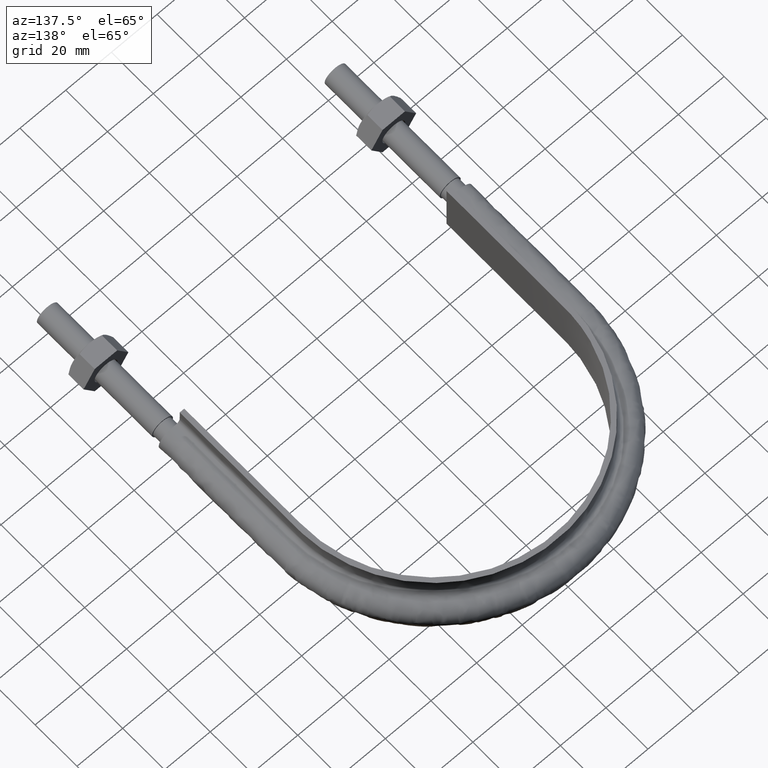
[diagram: clean part render]
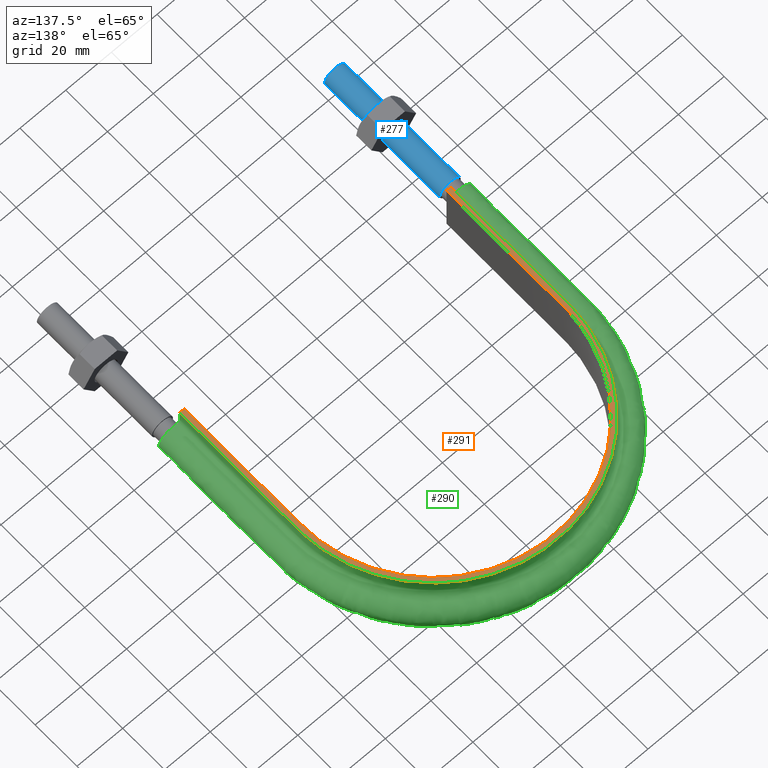
[diagram: same view with three faces highlighted in distinct colors, each labeled with its STEP entity id]
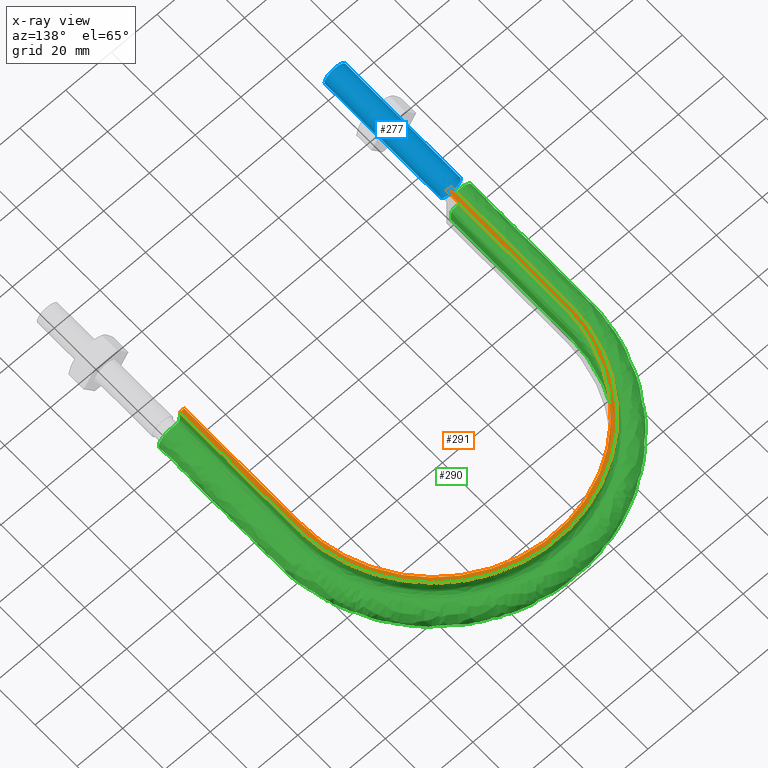
[diagram: x-ray of the same camera — body ghosted, the three highlighted faces saturated]
A machine part, auxiliary view with three faces highlighted in distinct colors.
The next image is the same camera in x-ray (body ghosted, the three faces saturated) — at least one of them is partly hidden behind the body in this view.
Their STEP definitions:

[orange] entity #291 — the highlighted planar face has unit normal (0, 0, 1).
#291 = ADVANCED_FACE( '', ( #456 ), #457, .T. );
#456 = FACE_OUTER_BOUND( '', #1278, .T. );
#457 = PLANE( '', #1279 );
#1278 = EDGE_LOOP( '', ( #1796, #1797, #1798, #1799 ) );
#1279 = AXIS2_PLACEMENT_3D( '', #1800, #1801, #1802 );
#1796 = ORIENTED_EDGE( '', *, *, #1956, .T. );
#1797 = ORIENTED_EDGE( '', *, *, #1961, .F. );
#1798 = ORIENTED_EDGE( '', *, *, #1965, .T. );
#1799 = ORIENTED_EDGE( '', *, *, #1963, .F. );
#1800 = CARTESIAN_POINT( '', ( 75.0000000000000, 189.300000000000, 12.5000000000000 ) );
#1801 = DIRECTION( '', ( 0.000000000000000, 0.000000000000000, 1.00000000000000 ) );
#1802 = DIRECTION( '', ( 1.00000000000000, 0.000000000000000, 0.000000000000000 ) );
#1956 = EDGE_CURVE( '', #2196, #2193, #2197, .F. );
#1961 = EDGE_CURVE( '', #2203, #2193, #2205, .T. );
#1963 = EDGE_CURVE( '', #2196, #2208, #2209, .T. );
#1965 = EDGE_CURVE( '', #2203, #2208, #2211, .F. );
#2193 = VERTEX_POINT( '', #2637 );
#2196 = VERTEX_POINT( '', #2641 );
#2197 = LINE( '', #2642, #2643 );
#2203 = VERTEX_POINT( '', #2695 );
#2205 = B_SPLINE_CURVE_WITH_KNOTS( '', 3, ( #2698, #2699, #2700, #2701, #2702, #2703, #2704, #2705, #2706, #2707, #2708, #2709, #2710, #2711, #2712, #2713, #2714, #2715, #2716, #2717, #2718, #2719, #2720, #2721, #2722, #2723, #2724, #2725, #2726, #2727, #2728, #2729, #2730, #2731, #2732, #2733, #2734, #2735, #2736, #2737, #2738, #2739, #2740, #2741, #2742, #2743, #2744, #2745, #2746, #2747, #2748, #2749, #2750, #2751, #2752, #2753, #2754, #2755, #2756, #2757, #2758, #2759, #2760, #2761, #2762, #2763, #2764, #2765, #2766, #2767, #2768, #2769, #2770, #2771, #2772, #2773, #2774, #2775, #2776, #2777, #2778, #2779, #2780, #2781, #2782, #2783, #2784, #2785 ), .UNSPECIFIED., .F., .F., ( 4, 1, 2, 2, 2, 2, 2, 2, 2, 2, 2, 2, 2, 2, 2, 2, 2, 2, 2, 2, 2, 2, 2, 2, 2, 2, 2, 2, 2, 2, 2, 2, 2, 2, 2, 2, 2, 2, 2, 2, 2, 2, 2, 1, 4 ), ( 6.93889390390723E-018, 0.0368006591004063, 0.0552009886506094, 0.0575010298443848, 0.0598010710381602, 0.0644011534257111, 0.0736013182008128, 0.0782014005883636, 0.0805014417821391, 0.0828014829759145, 0.0920016477510162, 0.0966017301385670, 0.0989017713323425, 0.101201812526118, 0.110401977301220, 0.115002059688771, 0.117302100882546, 0.119602142076322, 0.128802306851423, 0.133402389238974, 0.135702430432750, 0.138002471626525, 0.147202636401627, 0.156402801176728, 0.158702842370504, 0.161002883564279, 0.165602965951830, 0.174803130726932, 0.177103171920707, 0.179403213114483, 0.184003295502034, 0.193203460277135, 0.195503501470911, 0.197803542664686, 0.202403625052237, 0.211603789827339, 0.213903831021114, 0.216203872214890, 0.220803954602441, 0.230004119377542, 0.234604201765093, 0.236904242958868, 0.239204284152644, 0.257604613702847, 0.294405272803254 ), .UNSPECIFIED. );
#2208 = VERTEX_POINT( '', #2803 );
#2209 = B_SPLINE_CURVE_WITH_KNOTS( '', 3, ( #2804, #2805, #2806, #2807, #2808, #2809, #2810, #2811, #2812, #2813, #2814, #2815, #2816, #2817, #2818, #2819 ), .UNSPECIFIED., .F., .F., ( 4, 3, 1, 1, 1, 1, 1, 1, 3, 4 ), ( 0.0630615640598998, 1.00000000000000, 2.00000000000000, 3.00000000000000, 4.00000000000000, 5.00000000000000, 6.00000000000000, 7.00000000000000, 8.00000000000000, 8.93693843594010 ), .UNSPECIFIED. );
#2211 = LINE( '', #2851, #2852 );
#2637 = CARTESIAN_POINT( '', ( -57.4000000000000, 59.3000000000000, 12.5000000000000 ) );
#2641 = CARTESIAN_POINT( '', ( -59.4000000000000, 59.3000000000000, 12.5000000000000 ) );
#2642 = CARTESIAN_POINT( '', ( 75.0000000000000, 59.3000000000000, 12.5000000000000 ) );
#2643 = VECTOR( '', #3084, 1000.00000000000 );
#2695 = CARTESIAN_POINT( '', ( 57.4000000000000, 59.3000000000000, 12.5000000000000 ) );
#2698 = CARTESIAN_POINT( '', ( 57.4000000000000, 59.3000000000000, 12.5000000000000 ) );
#2699 = CARTESIAN_POINT( '', ( 57.4000000000000, 71.5668971504807, 12.5000000000000 ) );
#2700 = CARTESIAN_POINT( '', ( 57.4000000000000, 89.9672428762017, 12.5000000000000 ) );
#2701 = CARTESIAN_POINT( '', ( 57.4000000000000, 108.367588601923, 12.5000000000000 ) );
#2702 = CARTESIAN_POINT( '', ( 57.4000000000000, 115.267718249068, 12.5000000000000 ) );
#2703 = CARTESIAN_POINT( '', ( 57.4036066457802, 116.034404103252, 12.5000000000000 ) );
#2704 = CARTESIAN_POINT( '', ( 57.3712056389476, 117.567723284528, 12.5000000000000 ) );
#2705 = CARTESIAN_POINT( '', ( 57.3393359788148, 118.335375304587, 12.5000000000000 ) );
#2706 = CARTESIAN_POINT( '', ( 57.1976234100831, 120.630663469964, 12.5000000000000 ) );
#2707 = CARTESIAN_POINT( '', ( 57.0421967518527, 122.147180453960, 12.5000000000000 ) );
#2708 = CARTESIAN_POINT( '', ( 56.4004013757546, 126.657352705708, 12.5000000000000 ) );
#2709 = CARTESIAN_POINT( '', ( 55.7399883057787, 129.611959318387, 12.5000000000000 ) );
#2710 = CARTESIAN_POINT( '', ( 54.4013047063944, 133.965777471156, 12.5000000000000 ) );
#2711 = CARTESIAN_POINT( '', ( 53.8966972928597, 135.403952132018, 12.5000000000000 ) );
#2712 = CARTESIAN_POINT( '', ( 53.0487681131460, 137.540793277908, 12.5000000000000 ) );
#2713 = CARTESIAN_POINT( '', ( 52.7511260023258, 138.248939019185, 12.5000000000000 ) );
#2714 = CARTESIAN_POINT( '', ( 52.1306487491250, 139.645579267383, 12.5000000000000 ) );
#2715 = CARTESIAN_POINT( '', ( 51.8071932048135, 140.335643312283, 12.5000000000000 ) );
#2716 = CARTESIAN_POINT( '', ( 50.1243560027939, 143.745011154793, 12.5000000000000 ) );
#2717 = CARTESIAN_POINT( '', ( 48.5704537429599, 146.342805722191, 12.5000000000000 ) );
#2718 = CARTESIAN_POINT( '', ( 45.9378759805748, 150.051022440816, 12.5000000000000 ) );
#2719 = CARTESIAN_POINT( '', ( 45.0097482486542, 151.255485755391, 12.5000000000000 ) );
#2720 = CARTESIAN_POINT( '', ( 43.5399840512472, 153.013724230868, 12.5000000000000 ) );
#2721 = CARTESIAN_POINT( '', ( 43.0360401908091, 153.592882580464, 12.5000000000000 ) );
#2722 = CARTESIAN_POINT( '', ( 42.0071679355064, 154.728730541199, 12.5000000000000 ) );
#2723 = CARTESIAN_POINT( '', ( 41.4830799771197, 155.284602734684, 12.5000000000000 ) );
#2724 = CARTESIAN_POINT( '', ( 38.8150256208348, 158.004509636062, 12.5000000000000 ) );
#2725 = CARTESIAN_POINT( '', ( 36.5289375337691, 159.991083678085, 12.5000000000000 ) );
#2726 = CARTESIAN_POINT( '', ( 32.8725465474710, 162.687177301449, 12.5000000000000 ) );
#2727 = CARTESIAN_POINT( '', ( 31.6159998625510, 163.538738914915, 12.5000000000000 ) );
#2728 = CARTESIAN_POINT( '', ( 29.6741600235068, 164.744883379300, 12.5000000000000 ) );
#2729 = CARTESIAN_POINT( '', ( 29.0173621705769, 165.135046972001, 12.5000000000000 ) );
#2730 = CARTESIAN_POINT( '', ( 27.6844813094563, 165.891293691475, 12.5000000000000 ) );
#2731 = CARTESIAN_POINT( '', ( 27.0092860879624, 166.256786401143, 12.5000000000000 ) );
#2732 = CARTESIAN_POINT( '', ( 23.6148955512584, 168.008321558919, 12.5000000000000 ) );
#2733 = CARTESIAN_POINT( '', ( 20.8188839208601, 169.181221130253, 12.5000000000000 ) );
#2734 = CARTESIAN_POINT( '', ( 16.5063575914382, 170.604430974849, 12.5000000000000 ) );
#2735 = CARTESIAN_POINT( '', ( 15.0489724833804, 171.022456876126, 12.5000000000000 ) );
#2736 = CARTESIAN_POINT( '', ( 12.8322199583379, 171.562489310090, 12.5000000000000 ) );
#2737 = CARTESIAN_POINT( '', ( 12.0881682606319, 171.727937467103, 12.5000000000000 ) );
#2738 = CARTESIAN_POINT( '', ( 10.5896803128537, 172.029378956679, 12.5000000000000 ) );
#2739 = CARTESIAN_POINT( '', ( 9.83354107507674, 172.165648447286, 12.5000000000000 ) );
#2740 = CARTESIAN_POINT( '', ( 6.05033946504701, 172.768951449387, 12.5000000000000 ) );
#2741 = CARTESIAN_POINT( '', ( 3.02331961872779, 173.004107282322, 12.5000000000000 ) );
#2742 = CARTESIAN_POINT( '', ( -3.03159229771674, 173.003674706655, 12.5000000000000 ) );
#2743 = CARTESIAN_POINT( '', ( -6.05948435362816, 172.768093969407, 12.5000000000000 ) );
#2744 = CARTESIAN_POINT( '', ( -9.84492369258674, 172.163681704027, 12.5000000000000 ) );
#2745 = CARTESIAN_POINT( '', ( -10.6002721762764, 172.027389123451, 12.5000000000000 ) );
#2746 = CARTESIAN_POINT( '', ( -12.0978185021844, 171.725853405146, 12.5000000000000 ) );
#2747 = CARTESIAN_POINT( '', ( -12.8414452252180, 171.560367013092, 12.5000000000000 ) );
#2748 = CARTESIAN_POINT( '', ( -15.0570550081485, 171.020235378931, 12.5000000000000 ) );
#2749 = CARTESIAN_POINT( '', ( -16.5138535706963, 170.602163316093, 12.5000000000000 ) );
#2750 = CARTESIAN_POINT( '', ( -20.8250913381977, 169.178758755140, 12.5000000000000 ) );
#2751 = CARTESIAN_POINT( '', ( -23.6208691240751, 168.005657850112, 12.5000000000000 ) );
#2752 = CARTESIAN_POINT( '', ( -27.0156329102760, 166.253406103617, 12.5000000000000 ) );
#2753 = CARTESIAN_POINT( '', ( -27.6910147520960, 165.887696886022, 12.5000000000000 ) );
#2754 = CARTESIAN_POINT( '', ( -29.0234575114923, 165.131477440111, 12.5000000000000 ) );
#2755 = CARTESIAN_POINT( '', ( -29.6800585802787, 164.741324040592, 12.5000000000000 ) );
#2756 = CARTESIAN_POINT( '', ( -31.6213689725298, 163.535193660409, 12.5000000000000 ) );
#2757 = CARTESIAN_POINT( '', ( -32.8776437603805, 162.683619457023, 12.5000000000000 ) );
#2758 = CARTESIAN_POINT( '', ( -36.5334220827474, 159.987374398228, 12.5000000000000 ) );
#2759 = CARTESIAN_POINT( '', ( -38.8193751731554, 158.000549631674, 12.5000000000000 ) );
#2760 = CARTESIAN_POINT( '', ( -41.4874843976750, 155.279993585617, 12.5000000000000 ) );
#2761 = CARTESIAN_POINT( '', ( -42.0115944312468, 154.723974530571, 12.5000000000000 ) );
#2762 = CARTESIAN_POINT( '', ( -43.0405299781912, 153.587794110931, 12.5000000000000 ) );
#2763 = CARTESIAN_POINT( '', ( -43.5442393747025, 153.008765306378, 12.5000000000000 ) );
#2764 = CARTESIAN_POINT( '', ( -45.0135877457227, 151.250627800789, 12.5000000000000 ) );
#2765 = CARTESIAN_POINT( '', ( -45.9415210243651, 150.046162448528, 12.5000000000000 ) );
#2766 = CARTESIAN_POINT( '', ( -48.5736917716303, 146.337694282144, 12.5000000000000 ) );
#2767 = CARTESIAN_POINT( '', ( -50.1275589688897, 143.739408642437, 12.5000000000000 ) );
#2768 = CARTESIAN_POINT( '', ( -51.8104283189417, 140.328866111214, 12.5000000000000 ) );
#2769 = CARTESIAN_POINT( '', ( -52.1338941649284, 139.638538815899, 12.5000000000000 ) );
#2770 = CARTESIAN_POINT( '', ( -52.7543954652596, 138.241312252746, 12.5000000000000 ) );
#2771 = CARTESIAN_POINT( '', ( -53.0520667494113, 137.532782600104, 12.5000000000000 ) );
#2772 = CARTESIAN_POINT( '', ( -53.8993605656225, 135.396631283103, 12.5000000000000 ) );
#2773 = CARTESIAN_POINT( '', ( -54.4036525659497, 133.958777453083, 12.5000000000000 ) );
#2774 = CARTESIAN_POINT( '', ( -55.7415838846627, 129.605493588584, 12.5000000000000 ) );
#2775 = CARTESIAN_POINT( '', ( -56.4017548199478, 126.650676383386, 12.5000000000000 ) );
#2776 = CARTESIAN_POINT( '', ( -57.0431251208449, 122.139233624254, 12.5000000000000 ) );
#2777 = CARTESIAN_POINT( '', ( -57.1984001624354, 120.622133130999, 12.5000000000000 ) );
#2778 = CARTESIAN_POINT( '', ( -57.3398068241163, 118.325705356889, 12.5000000000000 ) );
#2779 = CARTESIAN_POINT( '', ( -57.3715266179354, 117.558403382567, 12.5000000000000 ) );
#2780 = CARTESIAN_POINT( '', ( -57.4036727794919, 116.025333757737, 12.5000000000000 ) );
#2781 = CARTESIAN_POINT( '', ( -57.4000000000000, 115.258769855846, 12.5000000000000 ) );
#2782 = CARTESIAN_POINT( '', ( -57.4000000000000, 108.359743435262, 12.5000000000000 ) );
#2783 = CARTESIAN_POINT( '', ( -57.4000000000000, 89.9623396470387, 12.5000000000000 ) );
#2784 = CARTESIAN_POINT( '', ( -57.4000000000000, 71.5649358588155, 12.5000000000000 ) );
#2785 = CARTESIAN_POINT( '', ( -57.4000000000000, 59.3000000000000, 12.5000000000000 ) );
#2803 = CARTESIAN_POINT( '', ( 59.4000000000000, 59.3000000000000, 12.5000000000000 ) );
#2804 = CARTESIAN_POINT( '', ( -59.4000000000000, 59.3000000000000, 12.5000000000000 ) );
#2805 = CARTESIAN_POINT( '', ( -59.4000000000000, 78.0700000000000, 12.5000000000000 ) );
#2806 = CARTESIAN_POINT( '', ( -59.4000000000000, 96.8400000000000, 12.5000000000000 ) );
#2807 = CARTESIAN_POINT( '', ( -59.4000000000000, 115.610000000000, 12.5000000000000 ) );
#2808 = CARTESIAN_POINT( '', ( -59.4000000000000, 124.484817836499, 12.5000000000000 ) );
#2809 = CARTESIAN_POINT( '', ( -55.3444933644878, 142.266836188810, 12.5000000000000 ) );
#2810 = CARTESIAN_POINT( '', ( -38.2995777447149, 163.635011205915, 12.5000000000000 ) );
#2811 = CARTESIAN_POINT( '', ( -13.6689610391051, 175.497859339137, 12.5000000000000 ) );
#2812 = CARTESIAN_POINT( '', ( 13.6689610391052, 175.497859339137, 12.5000000000000 ) );
#2813 = CARTESIAN_POINT( '', ( 38.2995777447150, 163.635011205915, 12.5000000000000 ) );
#2814 = CARTESIAN_POINT( '', ( 55.3444933644878, 142.266836188810, 12.5000000000000 ) );
#2815 = CARTESIAN_POINT( '', ( 59.4000000000000, 124.484817836499, 12.5000000000000 ) );
#2816 = CARTESIAN_POINT( '', ( 59.4000000000000, 115.610000000000, 12.5000000000000 ) );
#2817 = CARTESIAN_POINT( '', ( 59.4000000000000, 96.8399999999999, 12.5000000000000 ) );
#2818 = CARTESIAN_POINT( '', ( 59.4000000000000, 78.0700000000000, 12.5000000000000 ) );
#2819 = CARTESIAN_POINT( '', ( 59.4000000000000, 59.3000000000000, 12.5000000000000 ) );
#2851 = CARTESIAN_POINT( '', ( 75.0000000000000, 59.3000000000000, 12.5000000000000 ) );
#2852 = VECTOR( '', #3087, 1000.00000000000 );
#3084 = DIRECTION( '', ( -1.00000000000000, 2.75411799042744E-080, 0.000000000000000 ) );
#3087 = DIRECTION( '', ( -1.00000000000000, 2.75411799042744E-080, 0.000000000000000 ) );

[blue] entity #277 — the highlighted cylindrical surface (bore or boss wall) has radius 4.6 mm, axis along (0, 1, 0).
#277 = ADVANCED_FACE( '', ( #426, #427 ), #428, .T. );
#426 = FACE_OUTER_BOUND( '', #752, .T. );
#427 = FACE_OUTER_BOUND( '', #753, .T. );
#428 = CYLINDRICAL_SURFACE( '', #754, 4.60000000000000 );
#752 = EDGE_LOOP( '', ( #1710 ) );
#753 = EDGE_LOOP( '', ( #1711 ) );
#754 = AXIS2_PLACEMENT_3D( '', #1712, #1713, #1714 );
#1710 = ORIENTED_EDGE( '', *, *, #1953, .T. );
#1711 = ORIENTED_EDGE( '', *, *, #1954, .F. );
#1712 = CARTESIAN_POINT( '', ( -63.0000000000000, 55.0000000000000, 3.36766747301154E-015 ) );
#1713 = DIRECTION( '', ( 2.44921270764475E-016, 1.00000000000000, 6.12303176911189E-017 ) );
#1714 = DIRECTION( '', ( 1.00000000000000, -2.44921270764475E-016, 2.44921270764475E-016 ) );
#1953 = EDGE_CURVE( '', #2189, #2189, #2190, .T. );
#1954 = EDGE_CURVE( '', #2191, #2191, #2192, .T. );
#2189 = VERTEX_POINT( '', #2633 );
#2190 = CIRCLE( '', #2634, 4.60000000000000 );
#2191 = VERTEX_POINT( '', #2635 );
#2192 = CIRCLE( '', #2636, 4.60000000000000 );
#2633 = CARTESIAN_POINT( '', ( -58.4000000000000, 55.0000000000000, 4.49430531852813E-015 ) );
#2634 = AXIS2_PLACEMENT_3D( '', #3077, #3078, #3079 );
#2635 = CARTESIAN_POINT( '', ( -58.4000000000000, 6.58838218356439E-015, 1.12663784551659E-015 ) );
#2636 = AXIS2_PLACEMENT_3D( '', #3080, #3081, #3082 );
#3077 = CARTESIAN_POINT( '', ( -63.0000000000000, 55.0000000000000, 3.36766747301154E-015 ) );
#3078 = DIRECTION( '', ( -2.44921270764475E-016, -1.00000000000000, -6.12303176911189E-017 ) );
#3079 = DIRECTION( '', ( 1.00000000000000, -2.44921270764475E-016, 2.44921270764475E-016 ) );
#3080 = CARTESIAN_POINT( '', ( -63.0000000000000, 7.71502002908098E-015, 0.000000000000000 ) );
#3081 = DIRECTION( '', ( -2.44921270764475E-016, -1.00000000000000, -6.12303176911189E-017 ) );
#3082 = DIRECTION( '', ( 1.00000000000000, -2.44921270764475E-016, 2.44921270764475E-016 ) );

[green] entity #290 — the highlighted face is a freeform B-spline surface patch.
#290 = ADVANCED_FACE( '', ( #454 ), #455, .F. );
#454 = FACE_OUTER_BOUND( '', #781, .T. );
#455 = B_SPLINE_SURFACE_WITH_KNOTS( '', 3, 3, ( ( #782, #783, #784, #785, #786, #787, #788, #789, #790, #791, #792, #793, #794, #795, #796, #797 ), ( #798, #799, #800, #801, #802, #803, #804, #805, #806, #807, #808, #809, #810, #811, #812, #813 ), ( #814, #815, #816, #817, #818, #819, #820, #821, #822, #823, #824, #825, #826, #827, #828, #829 ), ( #830, #831, #832, #833, #834, #835, #836, #837, #838, #839, #840, #841, #842, #843, #844, #845 ), ( #846, #847, #848, #849, #850, #851, #852, #853, #854, #855, #856, #857, #858, #859, #860, #861 ), ( #862, #863, #864, #865, #866, #867, #868, #869, #870, #871, #872, #873, #874, #875, #876, #877 ), ( #878, #879, #880, #881, #882, #883, #884, #885, #886, #887, #888, #889, #890, #891, #892, #893 ), ( #894, #895, #896, #897, #898, #899, #900, #901, #902, #903, #904, #905, #906, #907, #908, #909 ), ( #910, #911, #912, #913, #914, #915, #916, #917, #918, #919, #920, #921, #922, #923, #924, #925 ), ( #926, #927, #928, #929, #930, #931, #932, #933, #934, #935, #936, #937, #938, #939, #940, #941 ), ( #942, #943, #944, #945, #946, #947, #948, #949, #950, #951, #952, #953, #954, #955, #956, #957 ), ( #958, #959, #960, #961, #962, #963, #964, #965, #966, #967, #968, #969, #970, #971, #972, #973 ), ( #974, #975, #976, #977, #978, #979, #980, #981, #982, #983, #984, #985, #986, #987, #988, #989 ), ( #990, #991, #992, #993, #994, #995, #996, #997, #998, #999, #1000, #1001, #1002, #1003, #1004, #1005 ), ( #1006, #1007, #1008, #1009, #1010, #1011, #1012, #1013, #1014, #1015, #1016, #1017, #1018, #1019, #1020, #1021 ), ( #1022, #1023, #1024, #1025, #1026, #1027, #1028, #1029, #1030, #1031, #1032, #1033, #1034, #1035, #1036, #1037 ), ( #1038, #1039, #1040, #1041, #1042, #1043, #1044, #1045, #1046, #1047, #1048, #1049, #1050, #1051, #1052, #1053 ), ( #1054, #1055, #1056, #1057, #1058, #1059, #1060, #1061, #1062, #1063, #1064, #1065, #1066, #1067, #1068, #1069 ), ( #1070, #1071, #1072, #1073, #1074, #1075, #1076, #1077, #1078, #1079, #1080, #1081, #1082, #1083, #1084, #1085 ), ( #1086, #1087, #1088, #1089, #1090, #1091, #1092, #1093, #1094, #1095, #1096, #1097, #1098, #1099, #1100, #1101 ), ( #1102, #1103, #1104, #1105, #1106, #1107, #1108, #1109, #1110, #1111, #1112, #1113, #1114, #1115, #1116, #1117 ), ( #1118, #1119, #1120, #1121, #1122, #1123, #1124, #1125, #1126, #1127, #1128, #1129, #1130, #1131, #1132, #1133 ), ( #1134, #1135, #1136, #1137, #1138, #1139, #1140, #1141, #1142, #1143, #1144, #1145, #1146, #1147, #1148, #1149 ), ( #1150, #1151, #1152, #1153, #1154, #1155, #1156, #1157, #1158, #1159, #1160, #1161, #1162, #1163, #1164, #1165 ), ( #1166, #1167, #1168, #1169, #1170, #1171, #1172, #1173, #1174, #1175, #1176, #1177, #1178, #1179, #1180, #1181 ), ( #1182, #1183, #1184, #1185, #1186, #1187, #1188, #1189, #1190, #1191, #1192, #1193, #1194, #1195, #1196, #1197 ), ( #1198, #1199, #1200, #1201, #1202, #1203, #1204, #1205, #1206, #1207, #1208, #1209, #1210, #1211, #1212, #1213 ), ( #1214, #1215, #1216, #1217, #1218, #1219, #1220, #1221, #1222, #1223, #1224, #1225, #1226, #1227, #1228, #1229 ), ( #1230, #1231, #1232, #1233, #1234, #1235, #1236, #1237, #1238, #1239, #1240, #1241, #1242, #1243, #1244, #1245 ), ( #1246, #1247, #1248, #1249, #1250, #1251, #1252, #1253, #1254, #1255, #1256, #1257, #1258, #1259, #1260, #1261 ), ( #1262, #1263, #1264, #1265, #1266, #1267, #1268, #1269, #1270, #1271, #1272, #1273, #1274, #1275, #1276, #1277 ) ), .UNSPECIFIED., .F., .F., .F., ( 4, 3, 1, 1, 1, 3, 3, 1, 1, 1, 3, 3, 1, 1, 1, 3, 4 ), ( 4, 3, 1, 1, 1, 1, 1, 1, 3, 4 ), ( 0.105263157894737, 0.157894736842105, 0.210526315789474, 0.263157894736842, 0.315789473684211, 0.368421052631579, 0.421052631578947, 0.473684210526316, 0.526315789473684, 0.578947368421053, 0.631578947368421, 0.684210526315789, 0.736842105263158, 0.789473684210526, 0.842105263157895, 0.894736842105263, 0.947368421052632 ), ( 0.000000000000000, 1.00000000000000, 2.00000000000000, 3.00000000000000, 4.00000000000000, 5.00000000000000, 6.00000000000000, 7.00000000000000, 8.00000000000000, 9.00000000000000 ), .UNSPECIFIED. );
#781 = EDGE_LOOP( '', ( #1792, #1793, #1794, #1795 ) );
#782 = CARTESIAN_POINT( '', ( -59.4000000000000, 55.5100000000000, 12.5000000000000 ) );
#783 = CARTESIAN_POINT( '', ( -59.4000000000000, 75.5433333333334, 12.5000000000000 ) );
#784 = CARTESIAN_POINT( '', ( -59.4000000000000, 95.5766666666667, 12.5000000000000 ) );
#785 = CARTESIAN_POINT( '', ( -59.4000000000000, 115.610000000000, 12.5000000000000 ) );
#786 = CARTESIAN_POINT( '', ( -59.4000000000000, 124.484817836499, 12.5000000000000 ) );
#787 = CARTESIAN_POINT( '', ( -55.3444933644878, 142.266836188810, 12.5000000000000 ) );
#788 = CARTESIAN_POINT( '', ( -38.2995777447149, 163.635011205915, 12.5000000000000 ) );
#789 = CARTESIAN_POINT( '', ( -13.6689610391051, 175.497859339137, 12.5000000000000 ) );
#790 = CARTESIAN_POINT( '', ( 13.6689610391052, 175.497859339137, 12.5000000000000 ) );
#791 = CARTESIAN_POINT( '', ( 38.2995777447150, 163.635011205915, 12.5000000000000 ) );
#792 = CARTESIAN_POINT( '', ( 55.3444933644878, 142.266836188810, 12.5000000000000 ) );
#793 = CARTESIAN_POINT( '', ( 59.4000000000000, 124.484817836499, 12.5000000000000 ) );
#794 = CARTESIAN_POINT( '', ( 59.4000000000000, 115.610000000000, 12.5000000000000 ) );
#795 = CARTESIAN_POINT( '', ( 59.4000000000000, 95.5766666666666, 12.5000000000000 ) );
#796 = CARTESIAN_POINT( '', ( 59.4000000000000, 75.5433333333333, 12.5000000000000 ) );
#797 = CARTESIAN_POINT( '', ( 59.4000000000000, 55.5100000000000, 12.5000000000000 ) );
#798 = CARTESIAN_POINT( '', ( -59.4000000000000, 55.5100000000000, 10.8666666666667 ) );
#799 = CARTESIAN_POINT( '', ( -59.4000000000000, 75.5433333333334, 10.8666666666667 ) );
#800 = CARTESIAN_POINT( '', ( -59.4000000000000, 95.5766666666667, 10.8666666666667 ) );
#801 = CARTESIAN_POINT( '', ( -59.4000000000000, 115.610000000000, 10.8666666666667 ) );
#802 = CARTESIAN_POINT( '', ( -59.4000000000000, 124.484817836499, 10.8666666666667 ) );
#803 = CARTESIAN_POINT( '', ( -55.3444933644878, 142.266836188810, 10.8666666666667 ) );
#804 = CARTESIAN_POINT( '', ( -38.2995777447149, 163.635011205915, 10.8666666666667 ) );
#805 = CARTESIAN_POINT( '', ( -13.6689610391051, 175.497859339137, 10.8666666666667 ) );
#806 = CARTESIAN_POINT( '', ( 13.6689610391052, 175.497859339137, 10.8666666666667 ) );
#807 = CARTESIAN_POINT( '', ( 38.2995777447150, 163.635011205915, 10.8666666666667 ) );
#808 = CARTESIAN_POINT( '', ( 55.3444933644878, 142.266836188810, 10.8666666666667 ) );
#809 = CARTESIAN_POINT( '', ( 59.4000000000000, 124.484817836499, 10.8666666666667 ) );
#810 = CARTESIAN_POINT( '', ( 59.4000000000000, 115.610000000000, 10.8666666666667 ) );
#811 = CARTESIAN_POINT( '', ( 59.4000000000000, 95.5766666666666, 10.8666666666667 ) );
#812 = CARTESIAN_POINT( '', ( 59.4000000000000, 75.5433333333333, 10.8666666666667 ) );
#813 = CARTESIAN_POINT( '', ( 59.4000000000000, 55.5100000000000, 10.8666666666667 ) );
#814 = CARTESIAN_POINT( '', ( -59.4000000000000, 55.5100000000000, 9.23333333333334 ) );
#815 = CARTESIAN_POINT( '', ( -59.4000000000000, 75.5433333333334, 9.23333333333334 ) );
#816 = CARTESIAN_POINT( '', ( -59.4000000000000, 95.5766666666667, 9.23333333333334 ) );
#817 = CARTESIAN_POINT( '', ( -59.4000000000000, 115.610000000000, 9.23333333333334 ) );
#818 = CARTESIAN_POINT( '', ( -59.4000000000000, 124.484817836499, 9.23333333333334 ) );
#819 = CARTESIAN_POINT( '', ( -55.3444933644878, 142.266836188810, 9.23333333333333 ) );
#820 = CARTESIAN_POINT( '', ( -38.2995777447149, 163.635011205915, 9.23333333333334 ) );
#821 = CARTESIAN_POINT( '', ( -13.6689610391051, 175.497859339138, 9.23333333333334 ) );
#822 = CARTESIAN_POINT( '', ( 13.6689610391052, 175.497859339137, 9.23333333333334 ) );
#823 = CARTESIAN_POINT( '', ( 38.2995777447150, 163.635011205915, 9.23333333333335 ) );
#824 = CARTESIAN_POINT( '', ( 55.3444933644878, 142.266836188810, 9.23333333333334 ) );
#825 = CARTESIAN_POINT( '', ( 59.4000000000000, 124.484817836499, 9.23333333333334 ) );
#826 = CARTESIAN_POINT( '', ( 59.4000000000000, 115.610000000000, 9.23333333333334 ) );
#827 = CARTESIAN_POINT( '', ( 59.4000000000000, 95.5766666666666, 9.23333333333334 ) );
#828 = CARTESIAN_POINT( '', ( 59.4000000000000, 75.5433333333333, 9.23333333333334 ) );
#829 = CARTESIAN_POINT( '', ( 59.4000000000000, 55.5100000000000, 9.23333333333334 ) );
#830 = CARTESIAN_POINT( '', ( -59.4000000000000, 55.5100000000000, 7.60000000000001 ) );
#831 = CARTESIAN_POINT( '', ( -59.4000000000000, 75.5433333333334, 7.60000000000001 ) );
#832 = CARTESIAN_POINT( '', ( -59.4000000000000, 95.5766666666667, 7.60000000000001 ) );
#833 = CARTESIAN_POINT( '', ( -59.4000000000000, 115.610000000000, 7.60000000000001 ) );
#834 = CARTESIAN_POINT( '', ( -59.4000000000000, 124.484817836499, 7.60000000000001 ) );
#835 = CARTESIAN_POINT( '', ( -55.3444933644878, 142.266836188810, 7.60000000000000 ) );
#836 = CARTESIAN_POINT( '', ( -38.2995777447149, 163.635011205915, 7.60000000000001 ) );
#837 = CARTESIAN_POINT( '', ( -13.6689610391051, 175.497859339137, 7.60000000000001 ) );
#838 = CARTESIAN_POINT( '', ( 13.6689610391052, 175.497859339138, 7.60000000000001 ) );
#839 = CARTESIAN_POINT( '', ( 38.2995777447150, 163.635011205915, 7.60000000000002 ) );
#840 = CARTESIAN_POINT( '', ( 55.3444933644878, 142.266836188810, 7.60000000000001 ) );
#841 = CARTESIAN_POINT( '', ( 59.4000000000000, 124.484817836499, 7.60000000000001 ) );
#842 = CARTESIAN_POINT( '', ( 59.4000000000000, 115.610000000000, 7.60000000000001 ) );
#843 = CARTESIAN_POINT( '', ( 59.4000000000000, 95.5766666666666, 7.60000000000001 ) );
#844 = CARTESIAN_POINT( '', ( 59.4000000000000, 75.5433333333333, 7.60000000000001 ) );
#845 = CARTESIAN_POINT( '', ( 59.4000000000000, 55.5100000000000, 7.60000000000001 ) );
#846 = CARTESIAN_POINT( '', ( -59.4000000000000, 55.5100000000000, 7.33823584172335 ) );
#847 = CARTESIAN_POINT( '', ( -59.4000000000000, 75.5433333333334, 7.33823584172335 ) );
#848 = CARTESIAN_POINT( '', ( -59.4000000000000, 95.5766666666667, 7.33823584172335 ) );
#849 = CARTESIAN_POINT( '', ( -59.4000000000000, 115.610000000000, 7.33823584172335 ) );
#850 = CARTESIAN_POINT( '', ( -59.4000000000000, 124.484817836499, 7.33823584172335 ) );
#851 = CARTESIAN_POINT( '', ( -55.3444933644878, 142.266836188810, 7.33823584172334 ) );
#852 = CARTESIAN_POINT( '', ( -38.2995777447149, 163.635011205915, 7.33823584172335 ) );
#853 = CARTESIAN_POINT( '', ( -13.6689610391051, 175.497859339138, 7.33823584172334 ) );
#854 = CARTESIAN_POINT( '', ( 13.6689610391052, 175.497859339137, 7.33823584172335 ) );
#855 = CARTESIAN_POINT( '', ( 38.2995777447150, 163.635011205915, 7.33823584172335 ) );
#856 = CARTESIAN_POINT( '', ( 55.3444933644878, 142.266836188810, 7.33823584172334 ) );
#857 = CARTESIAN_POINT( '', ( 59.4000000000000, 124.484817836499, 7.33823584172334 ) );
#858 = CARTESIAN_POINT( '', ( 59.4000000000000, 115.610000000000, 7.33823584172334 ) );
#859 = CARTESIAN_POINT( '', ( 59.4000000000000, 95.5766666666666, 7.33823584172335 ) );
#860 = CARTESIAN_POINT( '', ( 59.4000000000000, 75.5433333333333, 7.33823584172334 ) );
#861 = CARTESIAN_POINT( '', ( 59.4000000000000, 55.5100000000000, 7.33823584172334 ) );
#862 = CARTESIAN_POINT( '', ( -59.5041362568359, 55.5100000000000, 6.81470752517002 ) );
#863 = CARTESIAN_POINT( '', ( -59.5041362568359, 75.5433333333334, 6.81470752517002 ) );
#864 = CARTESIAN_POINT( '', ( -59.5041362568359, 95.5766666666667, 6.81470752517002 ) );
#865 = CARTESIAN_POINT( '', ( -59.5041362568359, 115.610000000000, 6.81470752517002 ) );
#866 = CARTESIAN_POINT( '', ( -59.5041362568359, 124.500663450545, 6.81470752517002 ) );
#867 = CARTESIAN_POINT( '', ( -55.4415197681150, 142.313436305670, 6.81470752517002 ) );
#868 = CARTESIAN_POINT( '', ( -38.3667220993400, 163.719240546797, 6.81470752517002 ) );
#869 = CARTESIAN_POINT( '', ( -13.6929245818231, 175.602843883112, 6.81470752517001 ) );
#870 = CARTESIAN_POINT( '', ( 13.6929245818232, 175.602843883112, 6.81470752517002 ) );
#871 = CARTESIAN_POINT( '', ( 38.3667220993401, 163.719240546797, 6.81470752517003 ) );
#872 = CARTESIAN_POINT( '', ( 55.4415197681150, 142.313436305670, 6.81470752517002 ) );
#873 = CARTESIAN_POINT( '', ( 59.5041362568359, 124.500663450545, 6.81470752517002 ) );
#874 = CARTESIAN_POINT( '', ( 59.5041362568359, 115.610000000000, 6.81470752517002 ) );
#875 = CARTESIAN_POINT( '', ( 59.5041362568359, 95.5766666666666, 6.81470752517002 ) );
#876 = CARTESIAN_POINT( '', ( 59.5041362568359, 75.5433333333333, 6.81470752517002 ) );
#877 = CARTESIAN_POINT( '', ( 59.5041362568359, 55.5100000000000, 6.81470752517002 ) );
#878 = CARTESIAN_POINT( '', ( -59.9489687109389, 55.5100000000000, 6.14896871093889 ) );
#879 = CARTESIAN_POINT( '', ( -59.9489687109389, 75.5433333333334, 6.14896871093889 ) );
#880 = CARTESIAN_POINT( '', ( -59.9489687109389, 95.5766666666667, 6.14896871093889 ) );
#881 = CARTESIAN_POINT( '', ( -59.9489687109389, 115.610000000000, 6.14896871093889 ) );
#882 = CARTESIAN_POINT( '', ( -59.9489687109389, 124.568350187109, 6.14896871093889 ) );
#883 = CARTESIAN_POINT( '', ( -55.8559814988290, 142.512495163498, 6.14896871093888 ) );
#884 = CARTESIAN_POINT( '', ( -38.6535385161630, 164.079037850355, 6.14896871093889 ) );
#885 = CARTESIAN_POINT( '', ( -13.7952881758309, 176.051299913300, 6.14896871093888 ) );
#886 = CARTESIAN_POINT( '', ( 13.7952881758310, 176.051299913300, 6.14896871093889 ) );
#887 = CARTESIAN_POINT( '', ( 38.6535385161631, 164.079037850355, 6.14896871093889 ) );
#888 = CARTESIAN_POINT( '', ( 55.8559814988290, 142.512495163498, 6.14896871093888 ) );
#889 = CARTESIAN_POINT( '', ( 59.9489687109389, 124.568350187109, 6.14896871093888 ) );
#890 = CARTESIAN_POINT( '', ( 59.9489687109389, 115.610000000000, 6.14896871093888 ) );
#891 = CARTESIAN_POINT( '', ( 59.9489687109389, 95.5766666666666, 6.14896871093889 ) );
#892 = CARTESIAN_POINT( '', ( 59.9489687109389, 75.5433333333333, 6.14896871093888 ) );
#893 = CARTESIAN_POINT( '', ( 59.9489687109389, 55.5100000000000, 6.14896871093888 ) );
#894 = CARTESIAN_POINT( '', ( -60.6147075251700, 55.5100000000000, 5.70413625683592 ) );
#895 = CARTESIAN_POINT( '', ( -60.6147075251700, 75.5433333333334, 5.70413625683592 ) );
#896 = CARTESIAN_POINT( '', ( -60.6147075251700, 95.5766666666667, 5.70413625683592 ) );
#897 = CARTESIAN_POINT( '', ( -60.6147075251700, 115.610000000000, 5.70413625683592 ) );
#898 = CARTESIAN_POINT( '', ( -60.6147075251700, 124.669650547107, 5.70413625683592 ) );
#899 = CARTESIAN_POINT( '', ( -56.4762673134198, 142.810407797233, 5.70413625683591 ) );
#900 = CARTESIAN_POINT( '', ( -39.0827896184075, 164.617512568251, 5.70413625683592 ) );
#901 = CARTESIAN_POINT( '', ( -13.9484861205101, 176.722461792381, 5.70413625683592 ) );
#902 = CARTESIAN_POINT( '', ( 13.9484861205102, 176.722461792381, 5.70413625683592 ) );
#903 = CARTESIAN_POINT( '', ( 39.0827896184075, 164.617512568251, 5.70413625683592 ) );
#904 = CARTESIAN_POINT( '', ( 56.4762673134199, 142.810407797233, 5.70413625683592 ) );
#905 = CARTESIAN_POINT( '', ( 60.6147075251700, 124.669650547107, 5.70413625683591 ) );
#906 = CARTESIAN_POINT( '', ( 60.6147075251700, 115.610000000000, 5.70413625683591 ) );
#907 = CARTESIAN_POINT( '', ( 60.6147075251700, 95.5766666666666, 5.70413625683592 ) );
#908 = CARTESIAN_POINT( '', ( 60.6147075251700, 75.5433333333333, 5.70413625683591 ) );
#909 = CARTESIAN_POINT( '', ( 60.6147075251700, 55.5100000000000, 5.70413625683591 ) );
#910 = CARTESIAN_POINT( '', ( -61.1382358417233, 55.5100000000000, 5.60000000000001 ) );
#911 = CARTESIAN_POINT( '', ( -61.1382358417233, 75.5433333333334, 5.60000000000001 ) );
#912 = CARTESIAN_POINT( '', ( -61.1382358417233, 95.5766666666667, 5.60000000000001 ) );
#913 = CARTESIAN_POINT( '', ( -61.1382358417233, 115.610000000000, 5.60000000000001 ) );
#914 = CARTESIAN_POINT( '', ( -61.1382358417233, 124.749311828382, 5.60000000000001 ) );
#915 = CARTESIAN_POINT( '', ( -56.9640519841539, 143.044682405060, 5.60000000000000 ) );
#916 = CARTESIAN_POINT( '', ( -39.4203470840875, 165.040962060065, 5.60000000000001 ) );
#917 = CARTESIAN_POINT( '', ( -14.0689589851875, 177.250254736369, 5.60000000000001 ) );
#918 = CARTESIAN_POINT( '', ( 14.0689589851876, 177.250254736369, 5.60000000000001 ) );
#919 = CARTESIAN_POINT( '', ( 39.4203470840876, 165.040962060065, 5.60000000000001 ) );
#920 = CARTESIAN_POINT( '', ( 56.9640519841540, 143.044682405060, 5.60000000000001 ) );
#921 = CARTESIAN_POINT( '', ( 61.1382358417234, 124.749311828382, 5.60000000000001 ) );
#922 = CARTESIAN_POINT( '', ( 61.1382358417234, 115.610000000000, 5.60000000000001 ) );
#923 = CARTESIAN_POINT( '', ( 61.1382358417234, 95.5766666666666, 5.60000000000001 ) );
#924 = CARTESIAN_POINT( '', ( 61.1382358417234, 75.5433333333333, 5.60000000000001 ) );
#925 = CARTESIAN_POINT( '', ( 61.1382358417234, 55.5100000000000, 5.60000000000001 ) );
#926 = CARTESIAN_POINT( '', ( -61.4000000000000, 55.5100000000000, 5.60000000000001 ) );
#927 = CARTESIAN_POINT( '', ( -61.4000000000000, 75.5433333333334, 5.60000000000001 ) );
#928 = CARTESIAN_POINT( '', ( -61.4000000000000, 95.5766666666667, 5.60000000000001 ) );
#929 = CARTESIAN_POINT( '', ( -61.4000000000000, 115.610000000000, 5.60000000000001 ) );
#930 = CARTESIAN_POINT( '', ( -61.4000000000000, 124.789142469019, 5.60000000000001 ) );
#931 = CARTESIAN_POINT( '', ( -57.2079443195210, 143.161819708974, 5.60000000000000 ) );
#932 = CARTESIAN_POINT( '', ( -39.5891258169275, 165.252686805971, 5.60000000000001 ) );
#933 = CARTESIAN_POINT( '', ( -14.1291954175262, 177.514151208362, 5.60000000000001 ) );
#934 = CARTESIAN_POINT( '', ( 14.1291954175263, 177.514151208363, 5.60000000000001 ) );
#935 = CARTESIAN_POINT( '', ( 39.5891258169276, 165.252686805971, 5.60000000000001 ) );
#936 = CARTESIAN_POINT( '', ( 57.2079443195211, 143.161819708974, 5.60000000000001 ) );
#937 = CARTESIAN_POINT( '', ( 61.4000000000000, 124.789142469019, 5.60000000000001 ) );
#938 = CARTESIAN_POINT( '', ( 61.4000000000000, 115.610000000000, 5.60000000000001 ) );
#939 = CARTESIAN_POINT( '', ( 61.4000000000000, 95.5766666666666, 5.60000000000001 ) );
#940 = CARTESIAN_POINT( '', ( 61.4000000000000, 75.5433333333333, 5.60000000000001 ) );
#941 = CARTESIAN_POINT( '', ( 61.4000000000000, 55.5100000000000, 5.60000000000001 ) );
#942 = CARTESIAN_POINT( '', ( -61.9333333333333, 55.5100000000000, 5.60000000000000 ) );
#943 = CARTESIAN_POINT( '', ( -61.9333333333333, 75.5433333333334, 5.60000000000000 ) );
#944 = CARTESIAN_POINT( '', ( -61.9333333333333, 95.5766666666667, 5.60000000000000 ) );
#945 = CARTESIAN_POINT( '', ( -61.9333333333333, 115.610000000000, 5.60000000000000 ) );
#946 = CARTESIAN_POINT( '', ( -61.9333333333333, 124.870295704358, 5.60000000000000 ) );
#947 = CARTESIAN_POINT( '', ( -57.7048645741966, 143.400481981018, 5.60000000000000 ) );
#948 = CARTESIAN_POINT( '', ( -39.9330053028509, 165.684066965987, 5.60000000000000 ) );
#949 = CARTESIAN_POINT( '', ( -14.2519245851051, 178.051829040156, 5.60000000000000 ) );
#950 = CARTESIAN_POINT( '', ( 14.2519245851052, 178.051829040156, 5.60000000000000 ) );
#951 = CARTESIAN_POINT( '', ( 39.9330053028510, 165.684066965987, 5.60000000000001 ) );
#952 = CARTESIAN_POINT( '', ( 57.7048645741966, 143.400481981018, 5.60000000000000 ) );
#953 = CARTESIAN_POINT( '', ( 61.9333333333334, 124.870295704358, 5.60000000000000 ) );
#954 = CARTESIAN_POINT( '', ( 61.9333333333334, 115.610000000000, 5.60000000000000 ) );
#955 = CARTESIAN_POINT( '', ( 61.9333333333334, 95.5766666666666, 5.60000000000000 ) );
#956 = CARTESIAN_POINT( '', ( 61.9333333333333, 75.5433333333333, 5.60000000000000 ) );
#957 = CARTESIAN_POINT( '', ( 61.9333333333333, 55.5100000000000, 5.60000000000000 ) );
#958 = CARTESIAN_POINT( '', ( -62.4666666666667, 55.5100000000000, 5.60000000000000 ) );
#959 = CARTESIAN_POINT( '', ( -62.4666666666666, 75.5433333333334, 5.60000000000000 ) );
#960 = CARTESIAN_POINT( '', ( -62.4666666666666, 95.5766666666667, 5.60000000000000 ) );
#961 = CARTESIAN_POINT( '', ( -62.4666666666666, 115.610000000000, 5.60000000000000 ) );
#962 = CARTESIAN_POINT( '', ( -62.4666666666666, 124.951448939696, 5.60000000000000 ) );
#963 = CARTESIAN_POINT( '', ( -58.2017848288721, 143.639144253061, 5.60000000000000 ) );
#964 = CARTESIAN_POINT( '', ( -40.2768847887742, 166.115447126002, 5.60000000000000 ) );
#965 = CARTESIAN_POINT( '', ( -14.3746537526841, 178.589506871949, 5.60000000000000 ) );
#966 = CARTESIAN_POINT( '', ( 14.3746537526842, 178.589506871949, 5.60000000000000 ) );
#967 = CARTESIAN_POINT( '', ( 40.2768847887743, 166.115447126002, 5.60000000000001 ) );
#968 = CARTESIAN_POINT( '', ( 58.2017848288721, 143.639144253061, 5.60000000000000 ) );
#969 = CARTESIAN_POINT( '', ( 62.4666666666667, 124.951448939696, 5.60000000000000 ) );
#970 = CARTESIAN_POINT( '', ( 62.4666666666667, 115.610000000000, 5.60000000000000 ) );
#971 = CARTESIAN_POINT( '', ( 62.4666666666667, 95.5766666666666, 5.60000000000000 ) );
#972 = CARTESIAN_POINT( '', ( 62.4666666666667, 75.5433333333333, 5.60000000000000 ) );
#973 = CARTESIAN_POINT( '', ( 62.4666666666667, 55.5100000000000, 5.60000000000000 ) );
#974 = CARTESIAN_POINT( '', ( -63.0000000000000, 55.5100000000000, 5.60000000000000 ) );
#975 = CARTESIAN_POINT( '', ( -63.0000000000000, 75.5433333333334, 5.60000000000000 ) );
#976 = CARTESIAN_POINT( '', ( -63.0000000000000, 95.5766666666667, 5.60000000000000 ) );
#977 = CARTESIAN_POINT( '', ( -63.0000000000000, 115.610000000000, 5.60000000000000 ) );
#978 = CARTESIAN_POINT( '', ( -63.0000000000000, 125.032602175035, 5.60000000000000 ) );
#979 = CARTESIAN_POINT( '', ( -58.6987050835476, 143.877806525105, 5.60000000000000 ) );
#980 = CARTESIAN_POINT( '', ( -40.6207642746976, 166.546827286017, 5.60000000000000 ) );
#981 = CARTESIAN_POINT( '', ( -14.4973829202630, 179.127184703742, 5.60000000000000 ) );
#982 = CARTESIAN_POINT( '', ( 14.4973829202631, 179.127184703743, 5.60000000000000 ) );
#983 = CARTESIAN_POINT( '', ( 40.6207642746977, 166.546827286017, 5.60000000000001 ) );
#984 = CARTESIAN_POINT( '', ( 58.6987050835477, 143.877806525105, 5.60000000000000 ) );
#985 = CARTESIAN_POINT( '', ( 63.0000000000000, 125.032602175035, 5.60000000000000 ) );
#986 = CARTESIAN_POINT( '', ( 63.0000000000000, 115.610000000000, 5.60000000000000 ) );
#987 = CARTESIAN_POINT( '', ( 63.0000000000000, 95.5766666666666, 5.60000000000000 ) );
#988 = CARTESIAN_POINT( '', ( 63.0000000000000, 75.5433333333333, 5.60000000000000 ) );
#989 = CARTESIAN_POINT( '', ( 63.0000000000000, 55.5100000000000, 5.60000000000000 ) );
#990 = CARTESIAN_POINT( '', ( -64.4627416997970, 55.5100000000000, 5.60000000000001 ) );
#991 = CARTESIAN_POINT( '', ( -64.4627416997969, 75.5433333333334, 5.60000000000001 ) );
#992 = CARTESIAN_POINT( '', ( -64.4627416997969, 95.5766666666667, 5.60000000000001 ) );
#993 = CARTESIAN_POINT( '', ( -64.4627416997969, 115.610000000000, 5.60000000000001 ) );
#994 = CARTESIAN_POINT( '', ( -64.4627416997969, 125.255176340166, 5.60000000000001 ) );
#995 = CARTESIAN_POINT( '', ( -60.0615787922744, 144.532371382892, 5.60000000000000 ) );
#996 = CARTESIAN_POINT( '', ( -41.5639021442567, 167.729948064491, 5.60000000000001 ) );
#997 = CARTESIAN_POINT( '', ( -14.8339849287613, 180.601841801781, 5.60000000000001 ) );
#998 = CARTESIAN_POINT( '', ( 14.8339849287614, 180.601841801781, 5.60000000000001 ) );
#999 = CARTESIAN_POINT( '', ( 41.5639021442568, 167.729948064491, 5.60000000000001 ) );
#1000 = CARTESIAN_POINT( '', ( 60.0615787922745, 144.532371382892, 5.60000000000001 ) );
#1001 = CARTESIAN_POINT( '', ( 64.4627416997970, 125.255176340166, 5.60000000000001 ) );
#1002 = CARTESIAN_POINT( '', ( 64.4627416997970, 115.610000000000, 5.60000000000001 ) );
#1003 = CARTESIAN_POINT( '', ( 64.4627416997970, 95.5766666666666, 5.60000000000001 ) );
#1004 = CARTESIAN_POINT( '', ( 64.4627416997970, 75.5433333333333, 5.60000000000001 ) );
#1005 = CARTESIAN_POINT( '', ( 64.4627416997970, 55.5100000000000, 5.60000000000001 ) );
#1006 = CARTESIAN_POINT( '', ( -67.3882250993909, 55.5100000000000, 4.38822509939086 ) );
#1007 = CARTESIAN_POINT( '', ( -67.3882250993908, 75.5433333333334, 4.38822509939086 ) );
#1008 = CARTESIAN_POINT( '', ( -67.3882250993908, 95.5766666666667, 4.38822509939086 ) );
#1009 = CARTESIAN_POINT( '', ( -67.3882250993908, 115.610000000000, 4.38822509939086 ) );
#1010 = CARTESIAN_POINT( '', ( -67.3882250993908, 125.700324670429, 4.38822509939086 ) );
#1011 = CARTESIAN_POINT( '', ( -62.7873262097280, 145.841501098467, 4.38822509939086 ) );
#1012 = CARTESIAN_POINT( '', ( -43.4501778833749, 170.096189621438, 4.38822509939086 ) );
#1013 = CARTESIAN_POINT( '', ( -15.5071889457579, 183.551155997858, 4.38822509939086 ) );
#1014 = CARTESIAN_POINT( '', ( 15.5071889457580, 183.551155997858, 4.38822509939086 ) );
#1015 = CARTESIAN_POINT( '', ( 43.4501778833750, 170.096189621438, 4.38822509939087 ) );
#1016 = CARTESIAN_POINT( '', ( 62.7873262097281, 145.841501098467, 4.38822509939086 ) );
#1017 = CARTESIAN_POINT( '', ( 67.3882250993909, 125.700324670429, 4.38822509939086 ) );
#1018 = CARTESIAN_POINT( '', ( 67.3882250993909, 115.610000000000, 4.38822509939086 ) );
#1019 = CARTESIAN_POINT( '', ( 67.3882250993909, 95.5766666666666, 4.38822509939086 ) );
#1020 = CARTESIAN_POINT( '', ( 67.3882250993909, 75.5433333333333, 4.38822509939086 ) );
#1021 = CARTESIAN_POINT( '', ( 67.3882250993909, 55.5100000000000, 4.38822509939086 ) );
#1022 = CARTESIAN_POINT( '', ( -69.2058874503046, 55.5100000000000, 1.38308419891421E-015 ) );
#1023 = CARTESIAN_POINT( '', ( -69.2058874503045, 75.5433333333334, 1.38308419891421E-015 ) );
#1024 = CARTESIAN_POINT( '', ( -69.2058874503045, 95.5766666666667, 1.38308419891421E-015 ) );
#1025 = CARTESIAN_POINT( '', ( -69.2058874503045, 115.610000000000, 1.38308419891421E-015 ) );
#1026 = CARTESIAN_POINT( '', ( -69.2058874503045, 125.976904383923, 1.38308419891421E-015 ) );
#1027 = CARTESIAN_POINT( '', ( -64.4808885315971, 146.654890023112, 1.38308419891421E-015 ) );
#1028 = CARTESIAN_POINT( '', ( -44.6221593736520, 171.566383638545, 1.38308419891421E-015 ) );
#1029 = CARTESIAN_POINT( '', ( -15.9254642968840, 185.383624907430, 1.38308419891421E-015 ) );
#1030 = CARTESIAN_POINT( '', ( 15.9254642968841, 185.383624907430, 1.38308419891421E-015 ) );
#1031 = CARTESIAN_POINT( '', ( 44.6221593736521, 171.566383638545, 1.38308419891421E-015 ) );
#1032 = CARTESIAN_POINT( '', ( 64.4808885315971, 146.654890023112, 1.38308419891421E-015 ) );
#1033 = CARTESIAN_POINT( '', ( 69.2058874503046, 125.976904383923, 1.38308419891421E-015 ) );
#1034 = CARTESIAN_POINT( '', ( 69.2058874503046, 115.610000000000, 1.38308419891421E-015 ) );
#1035 = CARTESIAN_POINT( '', ( 69.2058874503046, 95.5766666666666, 1.38308419891421E-015 ) );
#1036 = CARTESIAN_POINT( '', ( 69.2058874503046, 75.5433333333333, 1.38308419891421E-015 ) );
#1037 = CARTESIAN_POINT( '', ( 69.2058874503046, 55.5100000000000, 1.38308419891421E-015 ) );
#1038 = CARTESIAN_POINT( '', ( -67.3882250993909, 55.5100000000000, -4.38822509939086 ) );
#1039 = CARTESIAN_POINT( '', ( -67.3882250993908, 75.5433333333334, -4.38822509939086 ) );
#1040 = CARTESIAN_POINT( '', ( -67.3882250993908, 95.5766666666667, -4.38822509939086 ) );
#1041 = CARTESIAN_POINT( '', ( -67.3882250993908, 115.610000000000, -4.38822509939086 ) );
#1042 = CARTESIAN_POINT( '', ( -67.3882250993908, 125.700324670429, -4.38822509939086 ) );
#1043 = CARTESIAN_POINT( '', ( -62.7873262097280, 145.841501098467, -4.38822509939086 ) );
#1044 = CARTESIAN_POINT( '', ( -43.4501778833749, 170.096189621438, -4.38822509939086 ) );
#1045 = CARTESIAN_POINT( '', ( -15.5071889457579, 183.551155997858, -4.38822509939086 ) );
#1046 = CARTESIAN_POINT( '', ( 15.5071889457580, 183.551155997858, -4.38822509939086 ) );
#1047 = CARTESIAN_POINT( '', ( 43.4501778833750, 170.096189621438, -4.38822509939087 ) );
#1048 = CARTESIAN_POINT( '', ( 62.7873262097281, 145.841501098467, -4.38822509939086 ) );
#1049 = CARTESIAN_POINT( '', ( 67.3882250993909, 125.700324670429, -4.38822509939086 ) );
#1050 = CARTESIAN_POINT( '', ( 67.3882250993909, 115.610000000000, -4.38822509939086 ) );
#1051 = CARTESIAN_POINT( '', ( 67.3882250993909, 95.5766666666666, -4.38822509939086 ) );
#1052 = CARTESIAN_POINT( '', ( 67.3882250993909, 75.5433333333333, -4.38822509939086 ) );
#1053 = CARTESIAN_POINT( '', ( 67.3882250993909, 55.5100000000000, -4.38822509939086 ) );
#1054 = CARTESIAN_POINT( '', ( -64.4627416997970, 55.5100000000000, -5.60000000000001 ) );
#1055 = CARTESIAN_POINT( '', ( -64.4627416997969, 75.5433333333334, -5.60000000000001 ) );
#1056 = CARTESIAN_POINT( '', ( -64.4627416997969, 95.5766666666667, -5.60000000000001 ) );
#1057 = CARTESIAN_POINT( '', ( -64.4627416997969, 115.610000000000, -5.60000000000001 ) );
#1058 = CARTESIAN_POINT( '', ( -64.4627416997969, 125.255176340166, -5.60000000000001 ) );
#1059 = CARTESIAN_POINT( '', ( -60.0615787922744, 144.532371382892, -5.60000000000000 ) );
#1060 = CARTESIAN_POINT( '', ( -41.5639021442567, 167.729948064491, -5.60000000000001 ) );
#1061 = CARTESIAN_POINT( '', ( -14.8339849287613, 180.601841801781, -5.60000000000000 ) );
#1062 = CARTESIAN_POINT( '', ( 14.8339849287614, 180.601841801781, -5.60000000000001 ) );
#1063 = CARTESIAN_POINT( '', ( 41.5639021442568, 167.729948064491, -5.60000000000001 ) );
#1064 = CARTESIAN_POINT( '', ( 60.0615787922745, 144.532371382892, -5.60000000000000 ) );
#1065 = CARTESIAN_POINT( '', ( 64.4627416997970, 125.255176340166, -5.60000000000000 ) );
#1066 = CARTESIAN_POINT( '', ( 64.4627416997970, 115.610000000000, -5.60000000000000 ) );
#1067 = CARTESIAN_POINT( '', ( 64.4627416997970, 95.5766666666666, -5.60000000000001 ) );
#1068 = CARTESIAN_POINT( '', ( 64.4627416997970, 75.5433333333333, -5.60000000000000 ) );
#1069 = CARTESIAN_POINT( '', ( 64.4627416997970, 55.5100000000000, -5.60000000000000 ) );
#1070 = CARTESIAN_POINT( '', ( -63.0000000000000, 55.5100000000000, -5.60000000000001 ) );
#1071 = CARTESIAN_POINT( '', ( -63.0000000000000, 75.5433333333334, -5.60000000000001 ) );
#1072 = CARTESIAN_POINT( '', ( -63.0000000000000, 95.5766666666667, -5.60000000000001 ) );
#1073 = CARTESIAN_POINT( '', ( -63.0000000000000, 115.610000000000, -5.60000000000001 ) );
#1074 = CARTESIAN_POINT( '', ( -63.0000000000000, 125.032602175035, -5.60000000000001 ) );
#1075 = CARTESIAN_POINT( '', ( -58.6987050835476, 143.877806525105, -5.60000000000000 ) );
#1076 = CARTESIAN_POINT( '', ( -40.6207642746976, 166.546827286017, -5.60000000000001 ) );
#1077 = CARTESIAN_POINT( '', ( -14.4973829202630, 179.127184703742, -5.60000000000000 ) );
#1078 = CARTESIAN_POINT( '', ( 14.4973829202631, 179.127184703743, -5.60000000000001 ) );
#1079 = CARTESIAN_POINT( '', ( 40.6207642746977, 166.546827286017, -5.60000000000001 ) );
#1080 = CARTESIAN_POINT( '', ( 58.6987050835477, 143.877806525105, -5.60000000000000 ) );
#1081 = CARTESIAN_POINT( '', ( 63.0000000000000, 125.032602175035, -5.60000000000000 ) );
#1082 = CARTESIAN_POINT( '', ( 63.0000000000000, 115.610000000000, -5.60000000000000 ) );
#1083 = CARTESIAN_POINT( '', ( 63.0000000000000, 95.5766666666666, -5.60000000000001 ) );
#1084 = CARTESIAN_POINT( '', ( 63.0000000000000, 75.5433333333333, -5.60000000000000 ) );
#1085 = CARTESIAN_POINT( '', ( 63.0000000000000, 55.5100000000000, -5.60000000000000 ) );
#1086 = CARTESIAN_POINT( '', ( -62.4666666666667, 55.5100000000000, -5.60000000000000 ) );
#1087 = CARTESIAN_POINT( '', ( -62.4666666666666, 75.5433333333334, -5.60000000000000 ) );
#1088 = CARTESIAN_POINT( '', ( -62.4666666666666, 95.5766666666667, -5.60000000000000 ) );
#1089 = CARTESIAN_POINT( '', ( -62.4666666666666, 115.610000000000, -5.60000000000000 ) );
#1090 = CARTESIAN_POINT( '', ( -62.4666666666666, 124.951448939696, -5.60000000000000 ) );
#1091 = CARTESIAN_POINT( '', ( -58.2017848288721, 143.639144253061, -5.59999999999999 ) );
#1092 = CARTESIAN_POINT( '', ( -40.2768847887743, 166.115447126002, -5.60000000000000 ) );
#1093 = CARTESIAN_POINT( '', ( -14.3746537526841, 178.589506871949, -5.60000000000000 ) );
#1094 = CARTESIAN_POINT( '', ( 14.3746537526842, 178.589506871949, -5.60000000000000 ) );
#1095 = CARTESIAN_POINT( '', ( 40.2768847887743, 166.115447126002, -5.60000000000000 ) );
#1096 = CARTESIAN_POINT( '', ( 58.2017848288721, 143.639144253061, -5.60000000000000 ) );
#1097 = CARTESIAN_POINT( '', ( 62.4666666666667, 124.951448939696, -5.59999999999999 ) );
#1098 = CARTESIAN_POINT( '', ( 62.4666666666667, 115.610000000000, -5.59999999999999 ) );
#1099 = CARTESIAN_POINT( '', ( 62.4666666666667, 95.5766666666666, -5.60000000000000 ) );
#1100 = CARTESIAN_POINT( '', ( 62.4666666666667, 75.5433333333333, -5.59999999999999 ) );
#1101 = CARTESIAN_POINT( '', ( 62.4666666666667, 55.5100000000000, -5.59999999999999 ) );
#1102 = CARTESIAN_POINT( '', ( -61.9333333333333, 55.5100000000000, -5.60000000000000 ) );
#1103 = CARTESIAN_POINT( '', ( -61.9333333333333, 75.5433333333334, -5.60000000000000 ) );
#1104 = CARTESIAN_POINT( '', ( -61.9333333333333, 95.5766666666667, -5.60000000000000 ) );
#1105 = CARTESIAN_POINT( '', ( -61.9333333333333, 115.610000000000, -5.60000000000000 ) );
#1106 = CARTESIAN_POINT( '', ( -61.9333333333333, 124.870295704358, -5.60000000000000 ) );
#1107 = CARTESIAN_POINT( '', ( -57.7048645741966, 143.400481981018, -5.59999999999999 ) );
#1108 = CARTESIAN_POINT( '', ( -39.9330053028509, 165.684066965987, -5.60000000000000 ) );
#1109 = CARTESIAN_POINT( '', ( -14.2519245851051, 178.051829040156, -5.59999999999999 ) );
#1110 = CARTESIAN_POINT( '', ( 14.2519245851052, 178.051829040156, -5.60000000000000 ) );
#1111 = CARTESIAN_POINT( '', ( 39.9330053028510, 165.684066965987, -5.60000000000000 ) );
#1112 = CARTESIAN_POINT( '', ( 57.7048645741966, 143.400481981018, -5.59999999999999 ) );
#1113 = CARTESIAN_POINT( '', ( 61.9333333333333, 124.870295704358, -5.59999999999999 ) );
#1114 = CARTESIAN_POINT( '', ( 61.9333333333333, 115.610000000000, -5.59999999999999 ) );
#1115 = CARTESIAN_POINT( '', ( 61.9333333333333, 95.5766666666666, -5.60000000000000 ) );
#1116 = CARTESIAN_POINT( '', ( 61.9333333333333, 75.5433333333333, -5.59999999999999 ) );
#1117 = CARTESIAN_POINT( '', ( 61.9333333333333, 55.5100000000000, -5.59999999999999 ) );
#1118 = CARTESIAN_POINT( '', ( -61.4000000000000, 55.5100000000000, -5.60000000000000 ) );
#1119 = CARTESIAN_POINT( '', ( -61.4000000000000, 75.5433333333334, -5.60000000000000 ) );
#1120 = CARTESIAN_POINT( '', ( -61.4000000000000, 95.5766666666667, -5.60000000000000 ) );
#1121 = CARTESIAN_POINT( '', ( -61.4000000000000, 115.610000000000, -5.60000000000000 ) );
#1122 = CARTESIAN_POINT( '', ( -61.4000000000000, 124.789142469019, -5.60000000000000 ) );
#1123 = CARTESIAN_POINT( '', ( -57.2079443195210, 143.161819708974, -5.59999999999999 ) );
#1124 = CARTESIAN_POINT( '', ( -39.5891258169275, 165.252686805971, -5.60000000000000 ) );
#1125 = CARTESIAN_POINT( '', ( -14.1291954175262, 177.514151208362, -5.59999999999999 ) );
#1126 = CARTESIAN_POINT( '', ( 14.1291954175263, 177.514151208363, -5.60000000000000 ) );
#1127 = CARTESIAN_POINT( '', ( 39.5891258169276, 165.252686805971, -5.60000000000000 ) );
#1128 = CARTESIAN_POINT( '', ( 57.2079443195211, 143.161819708974, -5.59999999999999 ) );
#1129 = CARTESIAN_POINT( '', ( 61.4000000000000, 124.789142469019, -5.59999999999999 ) );
#1130 = CARTESIAN_POINT( '', ( 61.4000000000000, 115.610000000000, -5.59999999999999 ) );
#1131 = CARTESIAN_POINT( '', ( 61.4000000000000, 95.5766666666666, -5.60000000000000 ) );
#1132 = CARTESIAN_POINT( '', ( 61.4000000000000, 75.5433333333333, -5.59999999999999 ) );
#1133 = CARTESIAN_POINT( '', ( 61.4000000000000, 55.5100000000000, -5.59999999999999 ) );
#1134 = CARTESIAN_POINT( '', ( -61.1382358417233, 55.5100000000000, -5.60000000000000 ) );
#1135 = CARTESIAN_POINT( '', ( -61.1382358417233, 75.5433333333334, -5.60000000000000 ) );
#1136 = CARTESIAN_POINT( '', ( -61.1382358417233, 95.5766666666667, -5.60000000000000 ) );
#1137 = CARTESIAN_POINT( '', ( -61.1382358417233, 115.610000000000, -5.60000000000000 ) );
#1138 = CARTESIAN_POINT( '', ( -61.1382358417233, 124.749311828382, -5.60000000000000 ) );
#1139 = CARTESIAN_POINT( '', ( -56.9640519841539, 143.044682405060, -5.59999999999999 ) );
#1140 = CARTESIAN_POINT( '', ( -39.4203470840875, 165.040962060065, -5.60000000000000 ) );
#1141 = CARTESIAN_POINT( '', ( -14.0689589851875, 177.250254736369, -5.59999999999999 ) );
#1142 = CARTESIAN_POINT( '', ( 14.0689589851876, 177.250254736369, -5.60000000000000 ) );
#1143 = CARTESIAN_POINT( '', ( 39.4203470840876, 165.040962060065, -5.60000000000000 ) );
#1144 = CARTESIAN_POINT( '', ( 56.9640519841540, 143.044682405060, -5.59999999999999 ) );
#1145 = CARTESIAN_POINT( '', ( 61.1382358417233, 124.749311828382, -5.59999999999999 ) );
#1146 = CARTESIAN_POINT( '', ( 61.1382358417233, 115.610000000000, -5.59999999999999 ) );
#1147 = CARTESIAN_POINT( '', ( 61.1382358417233, 95.5766666666666, -5.60000000000000 ) );
#1148 = CARTESIAN_POINT( '', ( 61.1382358417233, 75.5433333333333, -5.59999999999999 ) );
#1149 = CARTESIAN_POINT( '', ( 61.1382358417233, 55.5100000000000, -5.59999999999999 ) );
#1150 = CARTESIAN_POINT( '', ( -60.6147075251700, 55.5100000000000, -5.70413625683591 ) );
#1151 = CARTESIAN_POINT( '', ( -60.6147075251700, 75.5433333333334, -5.70413625683591 ) );
#1152 = CARTESIAN_POINT( '', ( -60.6147075251700, 95.5766666666667, -5.70413625683591 ) );
#1153 = CARTESIAN_POINT( '', ( -60.6147075251700, 115.610000000000, -5.70413625683591 ) );
#1154 = CARTESIAN_POINT( '', ( -60.6147075251700, 124.669650547107, -5.70413625683591 ) );
#1155 = CARTESIAN_POINT( '', ( -56.4762673134198, 142.810407797233, -5.70413625683590 ) );
#1156 = CARTESIAN_POINT( '', ( -39.0827896184075, 164.617512568251, -5.70413625683591 ) );
#1157 = CARTESIAN_POINT( '', ( -13.9484861205101, 176.722461792381, -5.70413625683590 ) );
#1158 = CARTESIAN_POINT( '', ( 13.9484861205102, 176.722461792381, -5.70413625683591 ) );
#1159 = CARTESIAN_POINT( '', ( 39.0827896184075, 164.617512568251, -5.70413625683591 ) );
#1160 = CARTESIAN_POINT( '', ( 56.4762673134199, 142.810407797233, -5.70413625683590 ) );
#1161 = CARTESIAN_POINT( '', ( 60.6147075251700, 124.669650547107, -5.70413625683590 ) );
#1162 = CARTESIAN_POINT( '', ( 60.6147075251700, 115.610000000000, -5.70413625683590 ) );
#1163 = CARTESIAN_POINT( '', ( 60.6147075251700, 95.5766666666666, -5.70413625683591 ) );
#1164 = CARTESIAN_POINT( '', ( 60.6147075251700, 75.5433333333333, -5.70413625683590 ) );
#1165 = CARTESIAN_POINT( '', ( 60.6147075251700, 55.5100000000000, -5.70413625683590 ) );
#1166 = CARTESIAN_POINT( '', ( -59.9489687109389, 55.5100000000000, -6.14896871093887 ) );
#1167 = CARTESIAN_POINT( '', ( -59.9489687109388, 75.5433333333334, -6.14896871093887 ) );
#1168 = CARTESIAN_POINT( '', ( -59.9489687109388, 95.5766666666667, -6.14896871093887 ) );
#1169 = CARTESIAN_POINT( '', ( -59.9489687109388, 115.610000000000, -6.14896871093887 ) );
#1170 = CARTESIAN_POINT( '', ( -59.9489687109388, 124.568350187109, -6.14896871093887 ) );
#1171 = CARTESIAN_POINT( '', ( -55.8559814988290, 142.512495163498, -6.14896871093887 ) );
#1172 = CARTESIAN_POINT( '', ( -38.6535385161630, 164.079037850355, -6.14896871093888 ) );
#1173 = CARTESIAN_POINT( '', ( -13.7952881758309, 176.051299913300, -6.14896871093887 ) );
#1174 = CARTESIAN_POINT( '', ( 13.7952881758310, 176.051299913300, -6.14896871093887 ) );
#1175 = CARTESIAN_POINT( '', ( 38.6535385161631, 164.079037850355, -6.14896871093888 ) );
#1176 = CARTESIAN_POINT( '', ( 55.8559814988290, 142.512495163498, -6.14896871093887 ) );
#1177 = CARTESIAN_POINT( '', ( 59.9489687109389, 124.568350187109, -6.14896871093887 ) );
#1178 = CARTESIAN_POINT( '', ( 59.9489687109389, 115.610000000000, -6.14896871093887 ) );
#1179 = CARTESIAN_POINT( '', ( 59.9489687109389, 95.5766666666666, -6.14896871093887 ) );
#1180 = CARTESIAN_POINT( '', ( 59.9489687109389, 75.5433333333333, -6.14896871093887 ) );
#1181 = CARTESIAN_POINT( '', ( 59.9489687109389, 55.5100000000000, -6.14896871093887 ) );
#1182 = CARTESIAN_POINT( '', ( -59.5041362568359, 55.5100000000000, -6.81470752517001 ) );
#1183 = CARTESIAN_POINT( '', ( -59.5041362568359, 75.5433333333334, -6.81470752517001 ) );
#1184 = CARTESIAN_POINT( '', ( -59.5041362568359, 95.5766666666667, -6.81470752517001 ) );
#1185 = CARTESIAN_POINT( '', ( -59.5041362568359, 115.610000000000, -6.81470752517001 ) );
#1186 = CARTESIAN_POINT( '', ( -59.5041362568359, 124.500663450545, -6.81470752517001 ) );
#1187 = CARTESIAN_POINT( '', ( -55.4415197681150, 142.313436305670, -6.81470752517000 ) );
#1188 = CARTESIAN_POINT( '', ( -38.3667220993400, 163.719240546797, -6.81470752517001 ) );
#1189 = CARTESIAN_POINT( '', ( -13.6929245818231, 175.602843883112, -6.81470752517001 ) );
#1190 = CARTESIAN_POINT( '', ( 13.6929245818232, 175.602843883112, -6.81470752517001 ) );
#1191 = CARTESIAN_POINT( '', ( 38.3667220993401, 163.719240546797, -6.81470752517001 ) );
#1192 = CARTESIAN_POINT( '', ( 55.4415197681150, 142.313436305670, -6.81470752517001 ) );
#1193 = CARTESIAN_POINT( '', ( 59.5041362568359, 124.500663450545, -6.81470752517001 ) );
#1194 = CARTESIAN_POINT( '', ( 59.5041362568359, 115.610000000000, -6.81470752517001 ) );
#1195 = CARTESIAN_POINT( '', ( 59.5041362568359, 95.5766666666666, -6.81470752517001 ) );
#1196 = CARTESIAN_POINT( '', ( 59.5041362568359, 75.5433333333333, -6.81470752517001 ) );
#1197 = CARTESIAN_POINT( '', ( 59.5041362568359, 55.5100000000000, -6.81470752517001 ) );
#1198 = CARTESIAN_POINT( '', ( -59.4000000000000, 55.5100000000000, -7.33823584172333 ) );
#1199 = CARTESIAN_POINT( '', ( -59.4000000000000, 75.5433333333334, -7.33823584172333 ) );
#1200 = CARTESIAN_POINT( '', ( -59.4000000000000, 95.5766666666667, -7.33823584172333 ) );
#1201 = CARTESIAN_POINT( '', ( -59.4000000000000, 115.610000000000, -7.33823584172333 ) );
#1202 = CARTESIAN_POINT( '', ( -59.4000000000000, 124.484817836499, -7.33823584172333 ) );
#1203 = CARTESIAN_POINT( '', ( -55.3444933644877, 142.266836188810, -7.33823584172333 ) );
#1204 = CARTESIAN_POINT( '', ( -38.2995777447149, 163.635011205915, -7.33823584172334 ) );
#1205 = CARTESIAN_POINT( '', ( -13.6689610391051, 175.497859339137, -7.33823584172333 ) );
#1206 = CARTESIAN_POINT( '', ( 13.6689610391052, 175.497859339137, -7.33823584172333 ) );
#1207 = CARTESIAN_POINT( '', ( 38.2995777447150, 163.635011205915, -7.33823584172334 ) );
#1208 = CARTESIAN_POINT( '', ( 55.3444933644878, 142.266836188810, -7.33823584172333 ) );
#1209 = CARTESIAN_POINT( '', ( 59.4000000000000, 124.484817836499, -7.33823584172333 ) );
#1210 = CARTESIAN_POINT( '', ( 59.4000000000000, 115.610000000000, -7.33823584172333 ) );
#1211 = CARTESIAN_POINT( '', ( 59.4000000000000, 95.5766666666666, -7.33823584172333 ) );
#1212 = CARTESIAN_POINT( '', ( 59.4000000000000, 75.5433333333333, -7.33823584172333 ) );
#1213 = CARTESIAN_POINT( '', ( 59.4000000000000, 55.5100000000000, -7.33823584172333 ) );
#1214 = CARTESIAN_POINT( '', ( -59.4000000000000, 55.5100000000000, -7.60000000000000 ) );
#1215 = CARTESIAN_POINT( '', ( -59.4000000000000, 75.5433333333334, -7.60000000000000 ) );
#1216 = CARTESIAN_POINT( '', ( -59.4000000000000, 95.5766666666667, -7.60000000000000 ) );
#1217 = CARTESIAN_POINT( '', ( -59.4000000000000, 115.610000000000, -7.60000000000000 ) );
#1218 = CARTESIAN_POINT( '', ( -59.4000000000000, 124.484817836499, -7.60000000000000 ) );
#1219 = CARTESIAN_POINT( '', ( -55.3444933644877, 142.266836188810, -7.59999999999999 ) );
#1220 = CARTESIAN_POINT( '', ( -38.2995777447149, 163.635011205915, -7.60000000000000 ) );
#1221 = CARTESIAN_POINT( '', ( -13.6689610391051, 175.497859339137, -7.59999999999999 ) );
#1222 = CARTESIAN_POINT( '', ( 13.6689610391052, 175.497859339137, -7.60000000000000 ) );
#1223 = CARTESIAN_POINT( '', ( 38.2995777447150, 163.635011205915, -7.60000000000000 ) );
#1224 = CARTESIAN_POINT( '', ( 55.3444933644878, 142.266836188810, -7.59999999999999 ) );
#1225 = CARTESIAN_POINT( '', ( 59.4000000000000, 124.484817836499, -7.59999999999999 ) );
#1226 = CARTESIAN_POINT( '', ( 59.4000000000000, 115.610000000000, -7.59999999999999 ) );
#1227 = CARTESIAN_POINT( '', ( 59.4000000000000, 95.5766666666666, -7.60000000000000 ) );
#1228 = CARTESIAN_POINT( '', ( 59.4000000000000, 75.5433333333333, -7.59999999999999 ) );
#1229 = CARTESIAN_POINT( '', ( 59.4000000000000, 55.5100000000000, -7.59999999999999 ) );
#1230 = CARTESIAN_POINT( '', ( -59.4000000000000, 55.5100000000000, -9.23333333333333 ) );
#1231 = CARTESIAN_POINT( '', ( -59.4000000000000, 75.5433333333334, -9.23333333333333 ) );
#1232 = CARTESIAN_POINT( '', ( -59.4000000000000, 95.5766666666667, -9.23333333333333 ) );
#1233 = CARTESIAN_POINT( '', ( -59.4000000000000, 115.610000000000, -9.23333333333333 ) );
#1234 = CARTESIAN_POINT( '', ( -59.4000000000000, 124.484817836499, -9.23333333333333 ) );
#1235 = CARTESIAN_POINT( '', ( -55.3444933644878, 142.266836188810, -9.23333333333332 ) );
#1236 = CARTESIAN_POINT( '', ( -38.2995777447149, 163.635011205915, -9.23333333333333 ) );
#1237 = CARTESIAN_POINT( '', ( -13.6689610391051, 175.497859339138, -9.23333333333333 ) );
#1238 = CARTESIAN_POINT( '', ( 13.6689610391052, 175.497859339137, -9.23333333333333 ) );
#1239 = CARTESIAN_POINT( '', ( 38.2995777447150, 163.635011205915, -9.23333333333334 ) );
#1240 = CARTESIAN_POINT( '', ( 55.3444933644878, 142.266836188810, -9.23333333333333 ) );
#1241 = CARTESIAN_POINT( '', ( 59.4000000000000, 124.484817836499, -9.23333333333333 ) );
#1242 = CARTESIAN_POINT( '', ( 59.4000000000000, 115.610000000000, -9.23333333333333 ) );
#1243 = CARTESIAN_POINT( '', ( 59.4000000000000, 95.5766666666666, -9.23333333333333 ) );
#1244 = CARTESIAN_POINT( '', ( 59.4000000000000, 75.5433333333333, -9.23333333333333 ) );
#1245 = CARTESIAN_POINT( '', ( 59.4000000000000, 55.5100000000000, -9.23333333333333 ) );
#1246 = CARTESIAN_POINT( '', ( -59.4000000000000, 55.5100000000000, -10.8666666666667 ) );
#1247 = CARTESIAN_POINT( '', ( -59.4000000000000, 75.5433333333334, -10.8666666666667 ) );
#1248 = CARTESIAN_POINT( '', ( -59.4000000000000, 95.5766666666667, -10.8666666666667 ) );
#1249 = CARTESIAN_POINT( '', ( -59.4000000000000, 115.610000000000, -10.8666666666667 ) );
#1250 = CARTESIAN_POINT( '', ( -59.4000000000000, 124.484817836499, -10.8666666666667 ) );
#1251 = CARTESIAN_POINT( '', ( -55.3444933644878, 142.266836188810, -10.8666666666667 ) );
#1252 = CARTESIAN_POINT( '', ( -38.2995777447149, 163.635011205915, -10.8666666666667 ) );
#1253 = CARTESIAN_POINT( '', ( -13.6689610391051, 175.497859339138, -10.8666666666667 ) );
#1254 = CARTESIAN_POINT( '', ( 13.6689610391052, 175.497859339137, -10.8666666666667 ) );
#1255 = CARTESIAN_POINT( '', ( 38.2995777447150, 163.635011205915, -10.8666666666667 ) );
#1256 = CARTESIAN_POINT( '', ( 55.3444933644878, 142.266836188810, -10.8666666666667 ) );
#1257 = CARTESIAN_POINT( '', ( 59.4000000000000, 124.484817836499, -10.8666666666667 ) );
#1258 = CARTESIAN_POINT( '', ( 59.4000000000000, 115.610000000000, -10.8666666666667 ) );
#1259 = CARTESIAN_POINT( '', ( 59.4000000000000, 95.5766666666666, -10.8666666666667 ) );
#1260 = CARTESIAN_POINT( '', ( 59.4000000000000, 75.5433333333333, -10.8666666666667 ) );
#1261 = CARTESIAN_POINT( '', ( 59.4000000000000, 55.5100000000000, -10.8666666666667 ) );
#1262 = CARTESIAN_POINT( '', ( -59.4000000000000, 55.5100000000000, -12.5000000000000 ) );
#1263 = CARTESIAN_POINT( '', ( -59.4000000000000, 75.5433333333334, -12.5000000000000 ) );
#1264 = CARTESIAN_POINT( '', ( -59.4000000000000, 95.5766666666667, -12.5000000000000 ) );
#1265 = CARTESIAN_POINT( '', ( -59.4000000000000, 115.610000000000, -12.5000000000000 ) );
#1266 = CARTESIAN_POINT( '', ( -59.4000000000000, 124.484817836499, -12.5000000000000 ) );
#1267 = CARTESIAN_POINT( '', ( -55.3444933644878, 142.266836188810, -12.5000000000000 ) );
#1268 = CARTESIAN_POINT( '', ( -38.2995777447149, 163.635011205915, -12.5000000000000 ) );
#1269 = CARTESIAN_POINT( '', ( -13.6689610391051, 175.497859339138, -12.5000000000000 ) );
#1270 = CARTESIAN_POINT( '', ( 13.6689610391052, 175.497859339137, -12.5000000000000 ) );
#1271 = CARTESIAN_POINT( '', ( 38.2995777447150, 163.635011205915, -12.5000000000000 ) );
#1272 = CARTESIAN_POINT( '', ( 55.3444933644878, 142.266836188810, -12.5000000000000 ) );
#1273 = CARTESIAN_POINT( '', ( 59.4000000000000, 124.484817836499, -12.5000000000000 ) );
#1274 = CARTESIAN_POINT( '', ( 59.4000000000000, 115.610000000000, -12.5000000000000 ) );
#1275 = CARTESIAN_POINT( '', ( 59.4000000000000, 95.5766666666666, -12.5000000000000 ) );
#1276 = CARTESIAN_POINT( '', ( 59.4000000000000, 75.5433333333333, -12.5000000000000 ) );
#1277 = CARTESIAN_POINT( '', ( 59.4000000000000, 55.5100000000000, -12.5000000000000 ) );
#1792 = ORIENTED_EDGE( '', *, *, #1962, .T. );
#1793 = ORIENTED_EDGE( '', *, *, #1957, .F. );
#1794 = ORIENTED_EDGE( '', *, *, #1963, .T. );
#1795 = ORIENTED_EDGE( '', *, *, #1964, .F. );
#1957 = EDGE_CURVE( '', #2196, #2198, #2199, .T. );
#1962 = EDGE_CURVE( '', #2206, #2198, #2207, .F. );
#1963 = EDGE_CURVE( '', #2196, #2208, #2209, .T. );
#1964 = EDGE_CURVE( '', #2206, #2208, #2210, .T. );
#2196 = VERTEX_POINT( '', #2641 );
#2198 = VERTEX_POINT( '', #2644 );
#2199 = B_SPLINE_CURVE_WITH_KNOTS( '', 3, ( #2645, #2646, #2647, #2648, #2649, #2650, #2651, #2652, #2653, #2654, #2655, #2656, #2657, #2658, #2659, #2660, #2661, #2662, #2663, #2664, #2665, #2666, #2667, #2668, #2669, #2670, #2671, #2672, #2673, #2674, #2675 ), .UNSPECIFIED., .F., .F., ( 4, 3, 1, 1, 1, 3, 3, 1, 1, 1, 3, 3, 1, 1, 1, 3, 4 ), ( 0.000000000000000, 0.00229143618322321, 0.00458287236644647, 0.00687430854966968, 0.00916574473289294, 0.0114571809161161, 0.0137486170993394, 0.0160400532825626, 0.0183314894657858, 0.0206229256490091, 0.0229143618322323, 0.0252057980154555, 0.0274972341986788, 0.0297886703819020, 0.0320801065651252, 0.0343715427483485, 0.0366629789315717 ), .UNSPECIFIED. );
#2206 = VERTEX_POINT( '', #2786 );
#2207 = B_SPLINE_CURVE_WITH_KNOTS( '', 3, ( #2787, #2788, #2789, #2790, #2791, #2792, #2793, #2794, #2795, #2796, #2797, #2798, #2799, #2800, #2801, #2802 ), .UNSPECIFIED., .F., .F., ( 4, 3, 1, 1, 1, 1, 1, 1, 3, 4 ), ( 0.0630615640599001, 1.00000000000000, 2.00000000000000, 3.00000000000000, 4.00000000000000, 5.00000000000000, 6.00000000000000, 7.00000000000000, 8.00000000000000, 8.93693843594010 ), .UNSPECIFIED. );
#2208 = VERTEX_POINT( '', #2803 );
#2209 = B_SPLINE_CURVE_WITH_KNOTS( '', 3, ( #2804, #2805, #2806, #2807, #2808, #2809, #2810, #2811, #2812, #2813, #2814, #2815, #2816, #2817, #2818, #2819 ), .UNSPECIFIED., .F., .F., ( 4, 3, 1, 1, 1, 1, 1, 1, 3, 4 ), ( 0.0630615640598998, 1.00000000000000, 2.00000000000000, 3.00000000000000, 4.00000000000000, 5.00000000000000, 6.00000000000000, 7.00000000000000, 8.00000000000000, 8.93693843594010 ), .UNSPECIFIED. );
#2210 = B_SPLINE_CURVE_WITH_KNOTS( '', 3, ( #2820, #2821, #2822, #2823, #2824, #2825, #2826, #2827, #2828, #2829, #2830, #2831, #2832, #2833, #2834, #2835, #2836, #2837, #2838, #2839, #2840, #2841, #2842, #2843, #2844, #2845, #2846, #2847, #2848, #2849, #2850 ), .UNSPECIFIED., .F., .F., ( 4, 3, 1, 1, 1, 3, 3, 1, 1, 1, 3, 3, 1, 1, 1, 3, 4 ), ( 1.73472347597681E-018, 0.00229143618322327, 0.00458287236644651, 0.00687430854966978, 0.00916574473289302, 0.0114571809161163, 0.0137486170993395, 0.0160400532825628, 0.0183314894657860, 0.0206229256490093, 0.0229143618322325, 0.0252057980154558, 0.0274972341986790, 0.0297886703819023, 0.0320801065651255, 0.0343715427483488, 0.0366629789315720 ), .UNSPECIFIED. );
#2641 = CARTESIAN_POINT( '', ( -59.4000000000000, 59.3000000000000, 12.5000000000000 ) );
#2644 = CARTESIAN_POINT( '', ( -59.4000000000000, 59.3000000000000, -12.5000000000000 ) );
#2645 = CARTESIAN_POINT( '', ( -59.4000000000000, 59.3000000000000, 12.5000000000000 ) );
#2646 = CARTESIAN_POINT( '', ( -59.4000000000000, 59.3000000000000, 10.8666666666667 ) );
#2647 = CARTESIAN_POINT( '', ( -59.4000000000000, 59.3000000000000, 9.23333333333334 ) );
#2648 = CARTESIAN_POINT( '', ( -59.4000000000000, 59.3000000000000, 7.60000000000001 ) );
#2649 = CARTESIAN_POINT( '', ( -59.4000000000000, 59.3000000000000, 7.33823584172335 ) );
#2650 = CARTESIAN_POINT( '', ( -59.5041362568359, 59.3000000000000, 6.81470752517002 ) );
#2651 = CARTESIAN_POINT( '', ( -59.9489687109389, 59.3000000000000, 6.14896871093889 ) );
#2652 = CARTESIAN_POINT( '', ( -60.6147075251700, 59.3000000000000, 5.70413625683592 ) );
#2653 = CARTESIAN_POINT( '', ( -61.1382358417233, 59.3000000000000, 5.60000000000001 ) );
#2654 = CARTESIAN_POINT( '', ( -61.4000000000000, 59.3000000000000, 5.60000000000001 ) );
#2655 = CARTESIAN_POINT( '', ( -61.9333333333333, 59.3000000000000, 5.60000000000000 ) );
#2656 = CARTESIAN_POINT( '', ( -62.4666666666667, 59.3000000000000, 5.60000000000000 ) );
#2657 = CARTESIAN_POINT( '', ( -63.0000000000000, 59.3000000000000, 5.60000000000000 ) );
#2658 = CARTESIAN_POINT( '', ( -64.4627416997970, 59.3000000000000, 5.60000000000001 ) );
#2659 = CARTESIAN_POINT( '', ( -67.3882250993909, 59.3000000000000, 4.38822509939086 ) );
#2660 = CARTESIAN_POINT( '', ( -69.2058874503046, 59.3000000000000, 1.38308419891421E-015 ) );
#2661 = CARTESIAN_POINT( '', ( -67.3882250993909, 59.3000000000000, -4.38822509939086 ) );
#2662 = CARTESIAN_POINT( '', ( -64.4627416997970, 59.3000000000000, -5.60000000000001 ) );
#2663 = CARTESIAN_POINT( '', ( -63.0000000000000, 59.3000000000000, -5.60000000000001 ) );
#2664 = CARTESIAN_POINT( '', ( -62.4666666666667, 59.3000000000000, -5.60000000000000 ) );
#2665 = CARTESIAN_POINT( '', ( -61.9333333333333, 59.3000000000000, -5.60000000000000 ) );
#2666 = CARTESIAN_POINT( '', ( -61.4000000000000, 59.3000000000000, -5.60000000000000 ) );
#2667 = CARTESIAN_POINT( '', ( -61.1382358417233, 59.3000000000000, -5.60000000000000 ) );
#2668 = CARTESIAN_POINT( '', ( -60.6147075251700, 59.3000000000000, -5.70413625683591 ) );
#2669 = CARTESIAN_POINT( '', ( -59.9489687109389, 59.3000000000000, -6.14896871093887 ) );
#2670 = CARTESIAN_POINT( '', ( -59.5041362568359, 59.3000000000000, -6.81470752517001 ) );
#2671 = CARTESIAN_POINT( '', ( -59.4000000000000, 59.3000000000000, -7.33823584172333 ) );
#2672 = CARTESIAN_POINT( '', ( -59.4000000000000, 59.3000000000000, -7.60000000000000 ) );
#2673 = CARTESIAN_POINT( '', ( -59.4000000000000, 59.3000000000000, -9.23333333333333 ) );
#2674 = CARTESIAN_POINT( '', ( -59.4000000000000, 59.3000000000000, -10.8666666666667 ) );
#2675 = CARTESIAN_POINT( '', ( -59.4000000000000, 59.3000000000000, -12.5000000000000 ) );
#2786 = CARTESIAN_POINT( '', ( 59.4000000000000, 59.3000000000000, -12.5000000000000 ) );
#2787 = CARTESIAN_POINT( '', ( -59.4000000000000, 59.3000000000000, -12.5000000000000 ) );
#2788 = CARTESIAN_POINT( '', ( -59.4000000000000, 78.0700000000001, -12.5000000000000 ) );
#2789 = CARTESIAN_POINT( '', ( -59.4000000000000, 96.8400000000000, -12.5000000000000 ) );
#2790 = CARTESIAN_POINT( '', ( -59.4000000000000, 115.610000000000, -12.5000000000000 ) );
#2791 = CARTESIAN_POINT( '', ( -59.4000000000000, 124.484817836499, -12.5000000000000 ) );
#2792 = CARTESIAN_POINT( '', ( -55.3444933644878, 142.266836188810, -12.5000000000000 ) );
#2793 = CARTESIAN_POINT( '', ( -38.2995777447149, 163.635011205915, -12.5000000000000 ) );
#2794 = CARTESIAN_POINT( '', ( -13.6689610391051, 175.497859339138, -12.5000000000000 ) );
#2795 = CARTESIAN_POINT( '', ( 13.6689610391052, 175.497859339137, -12.5000000000000 ) );
#2796 = CARTESIAN_POINT( '', ( 38.2995777447150, 163.635011205915, -12.5000000000000 ) );
#2797 = CARTESIAN_POINT( '', ( 55.3444933644878, 142.266836188810, -12.5000000000000 ) );
#2798 = CARTESIAN_POINT( '', ( 59.4000000000000, 124.484817836499, -12.5000000000000 ) );
#2799 = CARTESIAN_POINT( '', ( 59.4000000000000, 115.610000000000, -12.5000000000000 ) );
#2800 = CARTESIAN_POINT( '', ( 59.4000000000000, 96.8399999999999, -12.5000000000000 ) );
#2801 = CARTESIAN_POINT( '', ( 59.4000000000000, 78.0700000000000, -12.5000000000000 ) );
#2802 = CARTESIAN_POINT( '', ( 59.4000000000000, 59.3000000000000, -12.5000000000000 ) );
#2803 = CARTESIAN_POINT( '', ( 59.4000000000000, 59.3000000000000, 12.5000000000000 ) );
#2804 = CARTESIAN_POINT( '', ( -59.4000000000000, 59.3000000000000, 12.5000000000000 ) );
#2805 = CARTESIAN_POINT( '', ( -59.4000000000000, 78.0700000000000, 12.5000000000000 ) );
#2806 = CARTESIAN_POINT( '', ( -59.4000000000000, 96.8400000000000, 12.5000000000000 ) );
#2807 = CARTESIAN_POINT( '', ( -59.4000000000000, 115.610000000000, 12.5000000000000 ) );
#2808 = CARTESIAN_POINT( '', ( -59.4000000000000, 124.484817836499, 12.5000000000000 ) );
#2809 = CARTESIAN_POINT( '', ( -55.3444933644878, 142.266836188810, 12.5000000000000 ) );
#2810 = CARTESIAN_POINT( '', ( -38.2995777447149, 163.635011205915, 12.5000000000000 ) );
#2811 = CARTESIAN_POINT( '', ( -13.6689610391051, 175.497859339137, 12.5000000000000 ) );
#2812 = CARTESIAN_POINT( '', ( 13.6689610391052, 175.497859339137, 12.5000000000000 ) );
#2813 = CARTESIAN_POINT( '', ( 38.2995777447150, 163.635011205915, 12.5000000000000 ) );
#2814 = CARTESIAN_POINT( '', ( 55.3444933644878, 142.266836188810, 12.5000000000000 ) );
#2815 = CARTESIAN_POINT( '', ( 59.4000000000000, 124.484817836499, 12.5000000000000 ) );
#2816 = CARTESIAN_POINT( '', ( 59.4000000000000, 115.610000000000, 12.5000000000000 ) );
#2817 = CARTESIAN_POINT( '', ( 59.4000000000000, 96.8399999999999, 12.5000000000000 ) );
#2818 = CARTESIAN_POINT( '', ( 59.4000000000000, 78.0700000000000, 12.5000000000000 ) );
#2819 = CARTESIAN_POINT( '', ( 59.4000000000000, 59.3000000000000, 12.5000000000000 ) );
#2820 = CARTESIAN_POINT( '', ( 59.4000000000000, 59.3000000000000, -12.5000000000000 ) );
#2821 = CARTESIAN_POINT( '', ( 59.4000000000000, 59.3000000000000, -10.8666666666667 ) );
#2822 = CARTESIAN_POINT( '', ( 59.4000000000000, 59.3000000000000, -9.23333333333333 ) );
#2823 = CARTESIAN_POINT( '', ( 59.4000000000000, 59.3000000000000, -7.59999999999999 ) );
#2824 = CARTESIAN_POINT( '', ( 59.4000000000000, 59.3000000000000, -7.33823584172333 ) );
#2825 = CARTESIAN_POINT( '', ( 59.5041362568359, 59.3000000000000, -6.81470752517001 ) );
#2826 = CARTESIAN_POINT( '', ( 59.9489687109389, 59.3000000000000, -6.14896871093887 ) );
#2827 = CARTESIAN_POINT( '', ( 60.6147075251700, 59.3000000000000, -5.70413625683590 ) );
#2828 = CARTESIAN_POINT( '', ( 61.1382358417233, 59.3000000000000, -5.59999999999999 ) );
#2829 = CARTESIAN_POINT( '', ( 61.4000000000000, 59.3000000000000, -5.59999999999999 ) );
#2830 = CARTESIAN_POINT( '', ( 61.9333333333333, 59.3000000000000, -5.59999999999999 ) );
#2831 = CARTESIAN_POINT( '', ( 62.4666666666667, 59.3000000000000, -5.59999999999999 ) );
#2832 = CARTESIAN_POINT( '', ( 63.0000000000000, 59.3000000000000, -5.60000000000000 ) );
#2833 = CARTESIAN_POINT( '', ( 64.4627416997970, 59.3000000000000, -5.60000000000000 ) );
#2834 = CARTESIAN_POINT( '', ( 67.3882250993909, 59.3000000000000, -4.38822509939086 ) );
#2835 = CARTESIAN_POINT( '', ( 69.2058874503046, 59.3000000000000, 1.38308419891421E-015 ) );
#2836 = CARTESIAN_POINT( '', ( 67.3882250993909, 59.3000000000000, 4.38822509939086 ) );
#2837 = CARTESIAN_POINT( '', ( 64.4627416997970, 59.3000000000000, 5.60000000000001 ) );
#2838 = CARTESIAN_POINT( '', ( 63.0000000000000, 59.3000000000000, 5.60000000000000 ) );
#2839 = CARTESIAN_POINT( '', ( 62.4666666666667, 59.3000000000000, 5.60000000000000 ) );
#2840 = CARTESIAN_POINT( '', ( 61.9333333333333, 59.3000000000000, 5.60000000000000 ) );
#2841 = CARTESIAN_POINT( '', ( 61.4000000000000, 59.3000000000000, 5.60000000000001 ) );
#2842 = CARTESIAN_POINT( '', ( 61.1382358417234, 59.3000000000000, 5.60000000000001 ) );
#2843 = CARTESIAN_POINT( '', ( 60.6147075251700, 59.3000000000000, 5.70413625683591 ) );
#2844 = CARTESIAN_POINT( '', ( 59.9489687109389, 59.3000000000000, 6.14896871093888 ) );
#2845 = CARTESIAN_POINT( '', ( 59.5041362568359, 59.3000000000000, 6.81470752517002 ) );
#2846 = CARTESIAN_POINT( '', ( 59.4000000000000, 59.3000000000000, 7.33823584172334 ) );
#2847 = CARTESIAN_POINT( '', ( 59.4000000000000, 59.3000000000000, 7.60000000000001 ) );
#2848 = CARTESIAN_POINT( '', ( 59.4000000000000, 59.3000000000000, 9.23333333333334 ) );
#2849 = CARTESIAN_POINT( '', ( 59.4000000000000, 59.3000000000000, 10.8666666666667 ) );
#2850 = CARTESIAN_POINT( '', ( 59.4000000000000, 59.3000000000000, 12.5000000000000 ) );